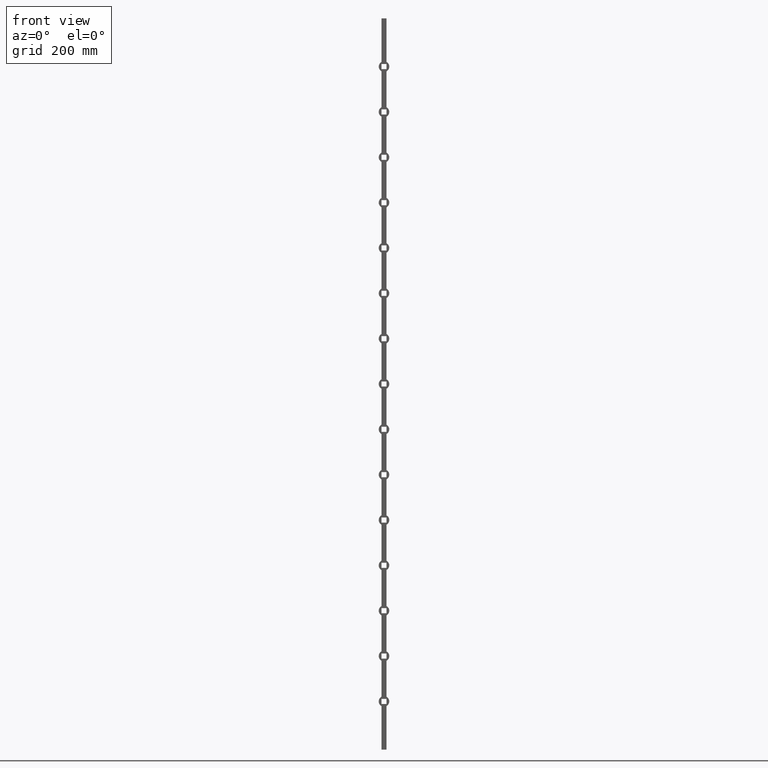
[diagram: clean part render]
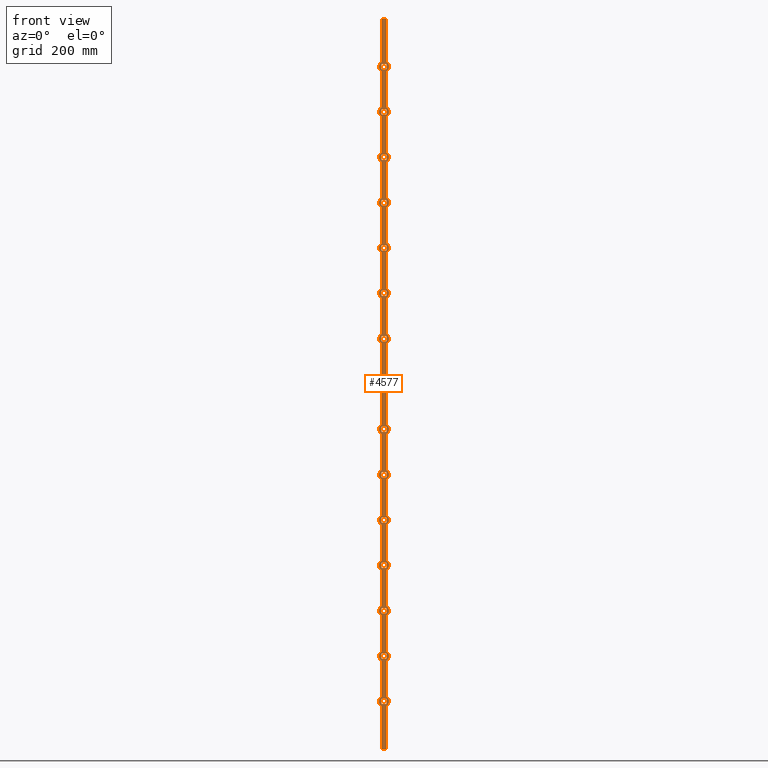
[diagram: same view with one face highlighted and labeled with its STEP entity id]
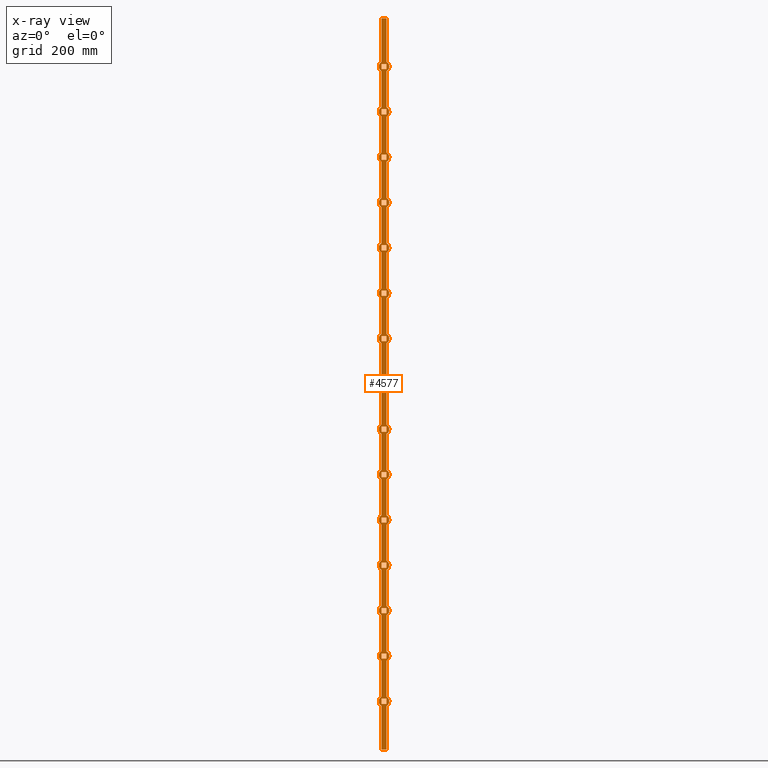
[diagram: x-ray of the same camera — body ghosted, the highlighted face saturated]
A machine part, front view. The second image highlights one B-rep face of the part: STEP entity #4577.
The next image is the same camera in x-ray: the body ghosted, the highlighted face saturated — about 0% of this face is hidden behind the body in this view.
In plain terms, the highlighted planar face has unit normal (0, 1, 0).
Its self-contained STEP definition (entity closure, byte-faithful):
#2 = ORIENTED_EDGE ( 'NONE', *, *, #13003, .T. ) ;
#6 = CARTESIAN_POINT ( 'NONE',  ( 7.000000000000005329, -7.000000000000000888, -255.0000000000001137 ) ) ;
#7 = VECTOR ( 'NONE', #14425, 1000.000000000000000 ) ;
#58 = ORIENTED_EDGE ( 'NONE', *, *, #4740, .T. ) ;
#85 = VERTEX_POINT ( 'NONE', #11510 ) ;
#104 = VERTEX_POINT ( 'NONE', #3488 ) ;
#107 = EDGE_CURVE ( 'NONE', #2911, #12431, #12876, .T. ) ;
#111 = LINE ( 'NONE', #10299, #4935 ) ;
#129 = EDGE_CURVE ( 'NONE', #8094, #363, #11469, .T. ) ;
#154 = DIRECTION ( 'NONE',  ( 1.000000000000000000, 0.000000000000000000, 0.000000000000000000 ) ) ;
#163 = CARTESIAN_POINT ( 'NONE',  ( 7.000000000000001776, -7.000000000000000000, 1000.000000000000000 ) ) ;
#173 = FACE_BOUND ( 'NONE', #11778, .T. ) ;
#186 = VECTOR ( 'NONE', #4996, 1000.000000000000000 ) ;
#187 = EDGE_LOOP ( 'NONE', ( #8700, #1679, #5447, #13505 ) ) ;
#190 = CARTESIAN_POINT ( 'NONE',  ( -7.000000000000005329, -7.000000000000000888, -613.0000000000000000 ) ) ;
#210 = VERTEX_POINT ( 'NONE', #8404 ) ;
#255 = AXIS2_PLACEMENT_3D ( 'NONE', #1571, #11595, #417 ) ;
#257 = CARTESIAN_POINT ( 'NONE',  ( -7.000000000000007105, -7.000000000000000888, 861.0000000000000000 ) ) ;
#277 = VECTOR ( 'NONE', #6298, 1000.000000000000000 ) ;
#284 = VERTEX_POINT ( 'NONE', #10565 ) ;
#290 = DIRECTION ( 'NONE',  ( 1.000000000000000000, 0.000000000000000000, 0.000000000000000000 ) ) ;
#294 = CARTESIAN_POINT ( 'NONE',  ( -6.999999999999998224, -7.000000000000000000, 136.6984250992003069 ) ) ;
#320 = LINE ( 'NONE', #357, #2826 ) ;
#324 = LINE ( 'NONE', #1363, #1237 ) ;
#335 = EDGE_CURVE ( 'NONE', #2011, #1256, #5264, .T. ) ;
#357 = CARTESIAN_POINT ( 'NONE',  ( -7.000000000000007105, -7.000000000000000888, 613.0000000000000000 ) ) ;
#363 = VERTEX_POINT ( 'NONE', #540 ) ;
#378 = VECTOR ( 'NONE', #8334, 1000.000000000000000 ) ;
#403 = LINE ( 'NONE', #1315, #8561 ) ;
#417 = DIRECTION ( 'NONE',  ( 0.000000000000000000, 0.000000000000000000, 1.000000000000000000 ) ) ;
#439 = EDGE_CURVE ( 'NONE', #8296, #13449, #12509, .T. ) ;
#458 = ORIENTED_EDGE ( 'NONE', *, *, #1755, .F. ) ;
#462 = EDGE_CURVE ( 'NONE', #12240, #6512, #9500, .T. ) ;
#473 = ORIENTED_EDGE ( 'NONE', *, *, #2362, .T. ) ;
#509 = EDGE_CURVE ( 'NONE', #13108, #3504, #4545, .T. ) ;
#536 = LINE ( 'NONE', #7591, #7800 ) ;
#540 = CARTESIAN_POINT ( 'NONE',  ( -7.000000000000007105, -7.000000000000000000, -875.0000000000000000 ) ) ;
#544 = LINE ( 'NONE', #9430, #7995 ) ;
#551 = CIRCLE ( 'NONE', #9554, 14.49999999999995737 ) ;
#555 = VECTOR ( 'NONE', #3030, 1000.000000000000000 ) ;
#561 = AXIS2_PLACEMENT_3D ( 'NONE', #10604, #8112, #2491 ) ;
#567 = ORIENTED_EDGE ( 'NONE', *, *, #8087, .F. ) ;
#589 = CARTESIAN_POINT ( 'NONE',  ( 7.000000000000021316, -7.000000000000000888, -260.6984250992003922 ) ) ;
#625 = VERTEX_POINT ( 'NONE', #10728 ) ;
#635 = EDGE_LOOP ( 'NONE', ( #10241, #7925, #7396, #9945 ) ) ;
#658 = CARTESIAN_POINT ( 'NONE',  ( -7.000000000000007105, -7.000000000000000888, 489.0000000000000000 ) ) ;
#679 = EDGE_LOOP ( 'NONE', ( #14469, #12852, #8071, #11506 ) ) ;
#682 = DIRECTION ( 'NONE',  ( -1.000000000000000000, -0.000000000000000000, -0.000000000000000000 ) ) ;
#708 = DIRECTION ( 'NONE',  ( -1.239088197126289831E-16, -0.000000000000000000, -1.000000000000000000 ) ) ;
#739 = CARTESIAN_POINT ( 'NONE',  ( 0.000000000000000000, -7.000000000000000888, -124.0000000000000000 ) ) ;
#743 = DIRECTION ( 'NONE',  ( -0.000000000000000000, -0.000000000000000000, -1.000000000000000000 ) ) ;
#755 = CARTESIAN_POINT ( 'NONE',  ( 0.000000000000000000, -7.000000000000000000, 124.0000000000000000 ) ) ;
#763 = VERTEX_POINT ( 'NONE', #1897 ) ;
#779 = CARTESIAN_POINT ( 'NONE',  ( 7.000000000000007105, -7.000000000000000888, -488.9999999999998863 ) ) ;
#780 = VERTEX_POINT ( 'NONE', #5631 ) ;
#791 = VECTOR ( 'NONE', #1369, 1000.000000000000000 ) ;
#820 = DIRECTION ( 'NONE',  ( 0.000000000000000000, 0.000000000000000000, 1.000000000000000000 ) ) ;
#825 = ORIENTED_EDGE ( 'NONE', *, *, #8459, .T. ) ;
#844 = ORIENTED_EDGE ( 'NONE', *, *, #12693, .F. ) ;
#853 = EDGE_LOOP ( 'NONE', ( #2286, #8909, #9162, #2 ) ) ;
#860 = EDGE_CURVE ( 'NONE', #11862, #14736, #5427, .T. ) ;
#861 = VERTEX_POINT ( 'NONE', #2886 ) ;
#863 = CARTESIAN_POINT ( 'NONE',  ( -7.000000000000007105, -7.000000000000000000, -379.0000000000000000 ) ) ;
#865 = CIRCLE ( 'NONE', #3681, 14.49999999999995737 ) ;
#866 = CARTESIAN_POINT ( 'NONE',  ( -6.999999999999998224, -7.000000000000000000, 855.3015749007997783 ) ) ;
#882 = CARTESIAN_POINT ( 'NONE',  ( -6.999999999999998224, -6.999999999999999112, -508.6984250992001648 ) ) ;
#884 = ORIENTED_EDGE ( 'NONE', *, *, #10209, .F. ) ;
#908 = ORIENTED_EDGE ( 'NONE', *, *, #11644, .T. ) ;
#918 = CARTESIAN_POINT ( 'NONE',  ( -7.000000000000007105, -7.000000000000000000, 613.0000000000000000 ) ) ;
#935 = CIRCLE ( 'NONE', #10492, 14.50000000000001243 ) ;
#939 = VECTOR ( 'NONE', #9495, 1000.000000000000000 ) ;
#943 = VERTEX_POINT ( 'NONE', #12037 ) ;
#951 = AXIS2_PLACEMENT_3D ( 'NONE', #10992, #14411, #12076 ) ;
#991 = CARTESIAN_POINT ( 'NONE',  ( 7.000000000000001776, -7.000000000000000000, 1000.000000000000000 ) ) ;
#1000 = ORIENTED_EDGE ( 'NONE', *, *, #8593, .T. ) ;
#1003 = ORIENTED_EDGE ( 'NONE', *, *, #1537, .T. ) ;
#1022 = LINE ( 'NONE', #14334, #12728 ) ;
#1027 = CARTESIAN_POINT ( 'NONE',  ( 7.000000000000007105, -7.000000000000000888, 503.0000000000000000 ) ) ;
#1030 = ORIENTED_EDGE ( 'NONE', *, *, #5075, .F. ) ;
#1040 = ORIENTED_EDGE ( 'NONE', *, *, #6907, .T. ) ;
#1050 = ORIENTED_EDGE ( 'NONE', *, *, #6622, .T. ) ;
#1079 = AXIS2_PLACEMENT_3D ( 'NONE', #6405, #4084, #5235 ) ;
#1097 = LINE ( 'NONE', #11496, #11383 ) ;
#1133 = CARTESIAN_POINT ( 'NONE',  ( -7.000000000000005329, -7.000000000000000888, -117.0000000000000000 ) ) ;
#1151 = DIRECTION ( 'NONE',  ( -1.239088197126289831E-16, -0.000000000000000000, -1.000000000000000000 ) ) ;
#1156 = VERTEX_POINT ( 'NONE', #11177 ) ;
#1163 = DIRECTION ( 'NONE',  ( -1.000000000000000000, -0.000000000000000000, -0.000000000000000000 ) ) ;
#1182 = VERTEX_POINT ( 'NONE', #8992 ) ;
#1193 = DIRECTION ( 'NONE',  ( 1.000000000000000000, 0.000000000000000000, 0.000000000000000000 ) ) ;
#1207 = CARTESIAN_POINT ( 'NONE',  ( 7.000000000000001776, -6.999999999999999112, -855.3015749007997783 ) ) ;
#1217 = VECTOR ( 'NONE', #11613, 1000.000000000000000 ) ;
#1237 = VECTOR ( 'NONE', #4888, 1000.000000000000000 ) ;
#1247 = VERTEX_POINT ( 'NONE', #5883 ) ;
#1256 = VERTEX_POINT ( 'NONE', #9038 ) ;
#1261 = FACE_BOUND ( 'NONE', #5557, .T. ) ;
#1264 = AXIS2_PLACEMENT_3D ( 'NONE', #13697, #9391, #5880 ) ;
#1270 = VERTEX_POINT ( 'NONE', #9091 ) ;
#1271 = DIRECTION ( 'NONE',  ( 0.000000000000000000, 1.000000000000000000, 0.000000000000000000 ) ) ;
#1285 = AXIS2_PLACEMENT_3D ( 'NONE', #11585, #11633, #9396 ) ;
#1297 = VECTOR ( 'NONE', #12128, 1000.000000000000000 ) ;
#1300 = VERTEX_POINT ( 'NONE', #3656 ) ;
#1308 = EDGE_CURVE ( 'NONE', #12424, #13587, #9663, .T. ) ;
#1315 = CARTESIAN_POINT ( 'NONE',  ( -6.999999999999998224, -7.000000000000000000, 1000.000000000000000 ) ) ;
#1358 = VERTEX_POINT ( 'NONE', #12664 ) ;
#1363 = CARTESIAN_POINT ( 'NONE',  ( -7.000000000000005329, -7.000000000000000888, -365.0000000000000000 ) ) ;
#1369 = DIRECTION ( 'NONE',  ( -0.000000000000000000, -0.000000000000000000, -1.000000000000000000 ) ) ;
#1377 = CARTESIAN_POINT ( 'NONE',  ( 7.000000000000001776, -7.000000000000000000, 384.6984250992002785 ) ) ;
#1380 = VERTEX_POINT ( 'NONE', #2553 ) ;
#1388 = CARTESIAN_POINT ( 'NONE',  ( -7.000000000000007105, -7.000000000000000888, -379.0000000000000000 ) ) ;
#1389 = LINE ( 'NONE', #4527, #9358 ) ;
#1419 = EDGE_CURVE ( 'NONE', #2476, #13890, #6652, .T. ) ;
#1436 = VECTOR ( 'NONE', #5256, 1000.000000000000000 ) ;
#1442 = DIRECTION ( 'NONE',  ( 0.000000000000000000, 1.000000000000000000, 0.000000000000000000 ) ) ;
#1468 = VERTEX_POINT ( 'NONE', #10519 ) ;
#1490 = CARTESIAN_POINT ( 'NONE',  ( 7.000000000000001776, -6.999999999999999112, -235.3015749007998068 ) ) ;
#1492 = CARTESIAN_POINT ( 'NONE',  ( -7.000000000000007105, -7.000000000000000888, 365.0000000000000000 ) ) ;
#1500 = VECTOR ( 'NONE', #10819, 1000.000000000000000 ) ;
#1504 = VECTOR ( 'NONE', #8558, 1000.000000000000000 ) ;
#1537 = EDGE_CURVE ( 'NONE', #1247, #10142, #6292, .T. ) ;
#1553 = CARTESIAN_POINT ( 'NONE',  ( 7.000000000000005329, -7.000000000000000888, -627.0000000000000000 ) ) ;
#1560 = EDGE_CURVE ( 'NONE', #5953, #1468, #7539, .T. ) ;
#1570 = LINE ( 'NONE', #13827, #1217 ) ;
#1571 = CARTESIAN_POINT ( 'NONE',  ( 0.000000000000000000, -7.000000000000000000, 0.000000000000000000 ) ) ;
#1577 = ORIENTED_EDGE ( 'NONE', *, *, #14636, .T. ) ;
#1588 = VECTOR ( 'NONE', #10341, 1000.000000000000000 ) ;
#1610 = FACE_BOUND ( 'NONE', #635, .T. ) ;
#1623 = VECTOR ( 'NONE', #682, 1000.000000000000000 ) ;
#1667 = LINE ( 'NONE', #6612, #5571 ) ;
#1679 = ORIENTED_EDGE ( 'NONE', *, *, #6482, .T. ) ;
#1754 = EDGE_CURVE ( 'NONE', #1853, #10871, #3102, .T. ) ;
#1755 = EDGE_CURVE ( 'NONE', #6207, #2011, #4159, .T. ) ;
#1767 = CARTESIAN_POINT ( 'NONE',  ( -7.000000000000007105, -7.000000000000000888, 737.0000000000000000 ) ) ;
#1784 = ORIENTED_EDGE ( 'NONE', *, *, #10431, .F. ) ;
#1785 = CARTESIAN_POINT ( 'NONE',  ( 7.000000000000005329, -7.000000000000000888, 737.0000000000000000 ) ) ;
#1796 = EDGE_CURVE ( 'NONE', #284, #6888, #10899, .T. ) ;
#1799 = CARTESIAN_POINT ( 'NONE',  ( 7.000000000000007105, -7.000000000000000888, 379.0000000000000000 ) ) ;
#1815 = VERTEX_POINT ( 'NONE', #10776 ) ;
#1818 = EDGE_CURVE ( 'NONE', #3948, #763, #8750, .T. ) ;
#1837 = ORIENTED_EDGE ( 'NONE', *, *, #2787, .F. ) ;
#1853 = VERTEX_POINT ( 'NONE', #13236 ) ;
#1871 = CARTESIAN_POINT ( 'NONE',  ( 7.000000000000001776, -7.000000000000000000, 632.6984250992002217 ) ) ;
#1897 = CARTESIAN_POINT ( 'NONE',  ( 7.000000000000005329, -7.000000000000000888, -751.0000000000001137 ) ) ;
#1911 = EDGE_CURVE ( 'NONE', #1853, #3529, #11064, .T. ) ;
#1927 = ORIENTED_EDGE ( 'NONE', *, *, #12516, .F. ) ;
#1932 = CARTESIAN_POINT ( 'NONE',  ( 7.000000000000007105, -7.000000000000000888, 131.0000000000000000 ) ) ;
#1937 = DIRECTION ( 'NONE',  ( -0.000000000000000000, -0.000000000000000000, -1.000000000000000000 ) ) ;
#1941 = ORIENTED_EDGE ( 'NONE', *, *, #4187, .F. ) ;
#1960 = CIRCLE ( 'NONE', #12499, 14.49999999999995737 ) ;
#1972 = FACE_BOUND ( 'NONE', #187, .T. ) ;
#1999 = CARTESIAN_POINT ( 'NONE',  ( 7.000000000000007105, -7.000000000000000888, 255.0000000000000000 ) ) ;
#2010 = CARTESIAN_POINT ( 'NONE',  ( 7.000000000000000000, -7.000000000000000000, 235.3015749007996931 ) ) ;
#2011 = VERTEX_POINT ( 'NONE', #2010 ) ;
#2014 = ORIENTED_EDGE ( 'NONE', *, *, #1796, .T. ) ;
#2021 = LINE ( 'NONE', #8204, #939 ) ;
#2043 = ORIENTED_EDGE ( 'NONE', *, *, #7526, .F. ) ;
#2071 = CARTESIAN_POINT ( 'NONE',  ( -7.000000000000018652, -7.000000000000000000, 756.6984250992002217 ) ) ;
#2093 = EDGE_LOOP ( 'NONE', ( #473, #13885, #6191, #8876 ) ) ;
#2109 = CARTESIAN_POINT ( 'NONE',  ( 7.000000000000001776, -7.000000000000000000, 1000.000000000000000 ) ) ;
#2111 = CARTESIAN_POINT ( 'NONE',  ( 0.000000000000000000, -7.000000000000000000, 620.0000000000000000 ) ) ;
#2121 = DIRECTION ( 'NONE',  ( 1.239088197126289831E-16, 0.000000000000000000, 1.000000000000000000 ) ) ;
#2135 = EDGE_CURVE ( 'NONE', #10285, #6303, #7511, .T. ) ;
#2161 = CARTESIAN_POINT ( 'NONE',  ( -6.999999999999998224, -6.999999999999999112, -880.6984250992002217 ) ) ;
#2164 = CARTESIAN_POINT ( 'NONE',  ( -6.999999999999998224, -7.000000000000000000, -12.69842509920029983 ) ) ;
#2175 = DIRECTION ( 'NONE',  ( 0.000000000000000000, 1.000000000000000000, 0.000000000000000000 ) ) ;
#2198 = LINE ( 'NONE', #10482, #8363 ) ;
#2204 = EDGE_CURVE ( 'NONE', #1380, #6977, #403, .T. ) ;
#2229 = LINE ( 'NONE', #9569, #1504 ) ;
#2261 = ORIENTED_EDGE ( 'NONE', *, *, #11223, .F. ) ;
#2281 = VERTEX_POINT ( 'NONE', #3739 ) ;
#2286 = ORIENTED_EDGE ( 'NONE', *, *, #13251, .T. ) ;
#2289 = CARTESIAN_POINT ( 'NONE',  ( 7.000000000000007105, -7.000000000000000888, -241.0000000000001137 ) ) ;
#2311 = ORIENTED_EDGE ( 'NONE', *, *, #8936, .T. ) ;
#2352 = VECTOR ( 'NONE', #5126, 1000.000000000000000 ) ;
#2362 = EDGE_CURVE ( 'NONE', #11436, #3948, #1667, .T. ) ;
#2366 = CARTESIAN_POINT ( 'NONE',  ( -7.000000000000005329, -7.000000000000000888, 255.0000000000000000 ) ) ;
#2373 = CARTESIAN_POINT ( 'NONE',  ( 0.000000000000000000, -7.000000000000000888, -744.0000000000001137 ) ) ;
#2388 = CARTESIAN_POINT ( 'NONE',  ( 7.000000000000001776, -7.000000000000000000, 1000.000000000000000 ) ) ;
#2417 = DIRECTION ( 'NONE',  ( -0.000000000000000000, -0.000000000000000000, -1.000000000000000000 ) ) ;
#2418 = DIRECTION ( 'NONE',  ( -1.239088197126289831E-16, -0.000000000000000000, -1.000000000000000000 ) ) ;
#2465 = VERTEX_POINT ( 'NONE', #6601 ) ;
#2468 = VECTOR ( 'NONE', #3753, 1000.000000000000000 ) ;
#2474 = CARTESIAN_POINT ( 'NONE',  ( -7.000000000000005329, -7.000000000000000888, -613.0000000000000000 ) ) ;
#2475 = LINE ( 'NONE', #8518, #10975 ) ;
#2476 = VERTEX_POINT ( 'NONE', #5461 ) ;
#2491 = DIRECTION ( 'NONE',  ( 0.000000000000000000, 0.000000000000000000, 1.000000000000000000 ) ) ;
#2532 = ORIENTED_EDGE ( 'NONE', *, *, #6736, .T. ) ;
#2533 = EDGE_CURVE ( 'NONE', #6304, #14571, #4502, .T. ) ;
#2553 = CARTESIAN_POINT ( 'NONE',  ( -6.999999999999998224, -7.000000000000000000, 1000.000000000000000 ) ) ;
#2561 = VECTOR ( 'NONE', #7909, 1000.000000000000000 ) ;
#2562 = EDGE_CURVE ( 'NONE', #3993, #11837, #13177, .T. ) ;
#2578 = DIRECTION ( 'NONE',  ( 0.000000000000000000, 0.000000000000000000, 1.000000000000000000 ) ) ;
#2608 = VERTEX_POINT ( 'NONE', #2071 ) ;
#2616 = ORIENTED_EDGE ( 'NONE', *, *, #14433, .T. ) ;
#2631 = EDGE_LOOP ( 'NONE', ( #13134, #14438, #6469, #1577, #3645, #2817, #4878, #13904, #6738, #8740, #9798, #3492, #11437, #1030, #1837, #1941, #6493, #10861, #1784, #11335, #13992, #10236, #11032, #458, #11628, #844, #14123, #3011, #2261, #6012, #13113, #9476, #9769, #14297, #4055, #2642, #14374, #7622, #5840, #1927, #13866, #13025, #5163, #11606, #10688, #3888, #10090, #10846, #3321, #2043, #7996, #5226, #8097, #884, #7099, #4756, #14504, #567, #3448, #8962, #11058, #3667, #11883, #6990 ) ) ;
#2636 = EDGE_CURVE ( 'NONE', #9150, #11568, #935, .T. ) ;
#2642 = ORIENTED_EDGE ( 'NONE', *, *, #2204, .F. ) ;
#2648 = ORIENTED_EDGE ( 'NONE', *, *, #1419, .T. ) ;
#2652 = VECTOR ( 'NONE', #14100, 1000.000000000000000 ) ;
#2658 = LINE ( 'NONE', #13674, #8461 ) ;
#2665 = EDGE_CURVE ( 'NONE', #5481, #5510, #7847, .T. ) ;
#2687 = DIRECTION ( 'NONE',  ( 0.000000000000000000, 0.000000000000000000, 1.000000000000000000 ) ) ;
#2708 = CARTESIAN_POINT ( 'NONE',  ( 7.000000000000001776, -7.000000000000000000, -1000.000000000000000 ) ) ;
#2735 = CIRCLE ( 'NONE', #1079, 14.50000000000000355 ) ;
#2747 = DIRECTION ( 'NONE',  ( 0.000000000000000000, 0.000000000000000000, 1.000000000000000000 ) ) ;
#2753 = CARTESIAN_POINT ( 'NONE',  ( 0.000000000000000000, -7.000000000000000000, 744.0000000000000000 ) ) ;
#2763 = CARTESIAN_POINT ( 'NONE',  ( 7.000000000000021316, -7.000000000000000888, -756.6984250992003354 ) ) ;
#2787 = EDGE_CURVE ( 'NONE', #7955, #104, #8201, .T. ) ;
#2790 = DIRECTION ( 'NONE',  ( 1.000000000000000000, 0.000000000000000000, 0.000000000000000000 ) ) ;
#2817 = ORIENTED_EDGE ( 'NONE', *, *, #10451, .F. ) ;
#2826 = VECTOR ( 'NONE', #8285, 1000.000000000000000 ) ;
#2843 = ORIENTED_EDGE ( 'NONE', *, *, #13864, .T. ) ;
#2886 = CARTESIAN_POINT ( 'NONE',  ( 7.000000000000001776, -7.000000000000000000, 12.69842509920029805 ) ) ;
#2908 = LINE ( 'NONE', #12566, #2561 ) ;
#2911 = VERTEX_POINT ( 'NONE', #2763 ) ;
#2934 = VECTOR ( 'NONE', #5964, 1000.000000000000000 ) ;
#2946 = VERTEX_POINT ( 'NONE', #5047 ) ;
#2960 = CARTESIAN_POINT ( 'NONE',  ( 7.000000000000001776, -7.000000000000000000, 1000.000000000000000 ) ) ;
#2976 = CARTESIAN_POINT ( 'NONE',  ( -7.000000000000007105, -7.000000000000000888, 241.0000000000000000 ) ) ;
#3011 = ORIENTED_EDGE ( 'NONE', *, *, #4040, .F. ) ;
#3027 = EDGE_CURVE ( 'NONE', #861, #4812, #2735, .T. ) ;
#3029 = CARTESIAN_POINT ( 'NONE',  ( 0.000000000000000000, -7.000000000000000000, 496.0000000000000000 ) ) ;
#3030 = DIRECTION ( 'NONE',  ( -0.000000000000000000, -0.000000000000000000, -1.000000000000000000 ) ) ;
#3045 = CIRCLE ( 'NONE', #1285, 14.50000000000001243 ) ;
#3050 = DIRECTION ( 'NONE',  ( -0.000000000000000000, -0.000000000000000000, -1.000000000000000000 ) ) ;
#3092 = CARTESIAN_POINT ( 'NONE',  ( 7.000000000000021316, -7.000000000000000000, 855.3015749007997783 ) ) ;
#3102 = CIRCLE ( 'NONE', #11332, 14.49999999999995737 ) ;
#3110 = DIRECTION ( 'NONE',  ( 0.000000000000000000, 0.000000000000000000, 1.000000000000000000 ) ) ;
#3130 = DIRECTION ( 'NONE',  ( 0.000000000000000000, 1.000000000000000000, 0.000000000000000000 ) ) ;
#3135 = AXIS2_PLACEMENT_3D ( 'NONE', #6565, #7697, #3110 ) ;
#3159 = CARTESIAN_POINT ( 'NONE',  ( 7.000000000000001776, -7.000000000000000000, 1000.000000000000000 ) ) ;
#3161 = DIRECTION ( 'NONE',  ( 0.000000000000000000, 0.000000000000000000, 1.000000000000000000 ) ) ;
#3168 = CARTESIAN_POINT ( 'NONE',  ( -6.999999999999998224, -7.000000000000000000, 1000.000000000000000 ) ) ;
#3213 = LINE ( 'NONE', #658, #7109 ) ;
#3215 = CARTESIAN_POINT ( 'NONE',  ( 0.000000000000000000, -7.000000000000000000, 372.0000000000000000 ) ) ;
#3250 = VECTOR ( 'NONE', #14510, 1000.000000000000000 ) ;
#3283 = ORIENTED_EDGE ( 'NONE', *, *, #5629, .T. ) ;
#3294 = CARTESIAN_POINT ( 'NONE',  ( -7.000000000000007105, -7.000000000000000888, -751.0000000000001137 ) ) ;
#3317 = CARTESIAN_POINT ( 'NONE',  ( -7.000000000000005329, -7.000000000000000888, 751.0000000000000000 ) ) ;
#3321 = ORIENTED_EDGE ( 'NONE', *, *, #12338, .T. ) ;
#3339 = CARTESIAN_POINT ( 'NONE',  ( 7.000000000000021316, -7.000000000000000000, 607.3015749007997783 ) ) ;
#3347 = CIRCLE ( 'NONE', #5590, 14.50000000000001243 ) ;
#3368 = VERTEX_POINT ( 'NONE', #14086 ) ;
#3371 = VERTEX_POINT ( 'NONE', #3787 ) ;
#3392 = CARTESIAN_POINT ( 'NONE',  ( 7.000000000000021316, -7.000000000000000000, 359.3015749007997215 ) ) ;
#3421 = LINE ( 'NONE', #14149, #378 ) ;
#3429 = LINE ( 'NONE', #11459, #12988 ) ;
#3437 = EDGE_CURVE ( 'NONE', #6888, #14522, #3429, .T. ) ;
#3448 = ORIENTED_EDGE ( 'NONE', *, *, #11307, .T. ) ;
#3482 = CARTESIAN_POINT ( 'NONE',  ( -7.000000000000018652, -7.000000000000000888, -607.3015749007997783 ) ) ;
#3488 = CARTESIAN_POINT ( 'NONE',  ( 7.000000000000001776, -6.999999999999999112, -359.3015749007997215 ) ) ;
#3492 = ORIENTED_EDGE ( 'NONE', *, *, #509, .F. ) ;
#3501 = EDGE_CURVE ( 'NONE', #8980, #5481, #5541, .T. ) ;
#3504 = VERTEX_POINT ( 'NONE', #6352 ) ;
#3514 = LINE ( 'NONE', #1492, #9887 ) ;
#3529 = VERTEX_POINT ( 'NONE', #9762 ) ;
#3575 = LINE ( 'NONE', #4313, #5709 ) ;
#3605 = DIRECTION ( 'NONE',  ( -0.000000000000000000, -0.000000000000000000, -1.000000000000000000 ) ) ;
#3645 = ORIENTED_EDGE ( 'NONE', *, *, #13974, .F. ) ;
#3656 = CARTESIAN_POINT ( 'NONE',  ( -7.000000000000007105, -7.000000000000000000, 365.0000000000000000 ) ) ;
#3667 = ORIENTED_EDGE ( 'NONE', *, *, #1754, .F. ) ;
#3681 = AXIS2_PLACEMENT_3D ( 'NONE', #5895, #8152, #11593 ) ;
#3718 = EDGE_CURVE ( 'NONE', #8707, #4063, #9785, .T. ) ;
#3739 = CARTESIAN_POINT ( 'NONE',  ( -6.999999999999998224, -6.999999999999999112, -136.6984250992003069 ) ) ;
#3749 = EDGE_LOOP ( 'NONE', ( #1003, #1000, #10646, #6899 ) ) ;
#3753 = DIRECTION ( 'NONE',  ( -1.239088197126289831E-16, -0.000000000000000000, -1.000000000000000000 ) ) ;
#3786 = LINE ( 'NONE', #257, #7500 ) ;
#3787 = CARTESIAN_POINT ( 'NONE',  ( -7.000000000000018652, -7.000000000000000000, 880.6984250992002217 ) ) ;
#3814 = VECTOR ( 'NONE', #154, 1000.000000000000000 ) ;
#3858 = CARTESIAN_POINT ( 'NONE',  ( 0.000000000000000000, -7.000000000000000888, -372.0000000000000000 ) ) ;
#3888 = ORIENTED_EDGE ( 'NONE', *, *, #4250, .F. ) ;
#3911 = EDGE_CURVE ( 'NONE', #7179, #7449, #1097, .T. ) ;
#3916 = CARTESIAN_POINT ( 'NONE',  ( -7.000000000000005329, -7.000000000000000888, -241.0000000000001137 ) ) ;
#3918 = VERTEX_POINT ( 'NONE', #10601 ) ;
#3936 = ORIENTED_EDGE ( 'NONE', *, *, #4518, .T. ) ;
#3948 = VERTEX_POINT ( 'NONE', #13022 ) ;
#3959 = ORIENTED_EDGE ( 'NONE', *, *, #11356, .T. ) ;
#3961 = DIRECTION ( 'NONE',  ( 1.000000000000000000, 0.000000000000000000, 0.000000000000000000 ) ) ;
#3993 = VERTEX_POINT ( 'NONE', #14012 ) ;
#4034 = VECTOR ( 'NONE', #10408, 1000.000000000000000 ) ;
#4039 = CARTESIAN_POINT ( 'NONE',  ( -6.999999999999998224, -7.000000000000000000, 1000.000000000000000 ) ) ;
#4040 = EDGE_CURVE ( 'NONE', #13357, #3993, #551, .T. ) ;
#4055 = ORIENTED_EDGE ( 'NONE', *, *, #6122, .F. ) ;
#4057 = VERTEX_POINT ( 'NONE', #8745 ) ;
#4063 = VERTEX_POINT ( 'NONE', #10988 ) ;
#4084 = DIRECTION ( 'NONE',  ( 0.000000000000000000, 1.000000000000000000, 0.000000000000000000 ) ) ;
#4114 = CARTESIAN_POINT ( 'NONE',  ( 7.000000000000001776, -7.000000000000000000, 1000.000000000000000 ) ) ;
#4122 = CARTESIAN_POINT ( 'NONE',  ( -6.999999999999998224, -7.000000000000000000, 1000.000000000000000 ) ) ;
#4159 = CIRCLE ( 'NONE', #1264, 14.50000000000001243 ) ;
#4169 = AXIS2_PLACEMENT_3D ( 'NONE', #4636, #11572, #4736 ) ;
#4187 = EDGE_CURVE ( 'NONE', #14736, #7955, #12071, .T. ) ;
#4202 = CARTESIAN_POINT ( 'NONE',  ( -6.999999999999998224, -7.000000000000000000, 1000.000000000000000 ) ) ;
#4243 = VERTEX_POINT ( 'NONE', #6574 ) ;
#4248 = LINE ( 'NONE', #6568, #13102 ) ;
#4250 = EDGE_CURVE ( 'NONE', #1358, #6220, #11194, .T. ) ;
#4258 = CARTESIAN_POINT ( 'NONE',  ( -7.000000000000005329, -7.000000000000000888, 131.0000000000000000 ) ) ;
#4266 = LINE ( 'NONE', #2960, #12598 ) ;
#4286 = DIRECTION ( 'NONE',  ( -1.000000000000000000, -0.000000000000000000, -0.000000000000000000 ) ) ;
#4313 = CARTESIAN_POINT ( 'NONE',  ( -6.999999999999998224, -7.000000000000000000, 1000.000000000000000 ) ) ;
#4382 = EDGE_CURVE ( 'NONE', #1256, #8916, #3045, .T. ) ;
#4385 = CARTESIAN_POINT ( 'NONE',  ( 7.000000000000001776, -7.000000000000000000, 1000.000000000000000 ) ) ;
#4404 = VERTEX_POINT ( 'NONE', #12710 ) ;
#4412 = VECTOR ( 'NONE', #4286, 1000.000000000000000 ) ;
#4417 = DIRECTION ( 'NONE',  ( -0.000000000000000000, -0.000000000000000000, -1.000000000000000000 ) ) ;
#4428 = EDGE_CURVE ( 'NONE', #1380, #3371, #14569, .T. ) ;
#4445 = CARTESIAN_POINT ( 'NONE',  ( 7.000000000000001776, -7.000000000000000000, 508.6984250992002785 ) ) ;
#4446 = DIRECTION ( 'NONE',  ( -1.239088197126289831E-16, -0.000000000000000000, -1.000000000000000000 ) ) ;
#4487 = CARTESIAN_POINT ( 'NONE',  ( 7.000000000000001776, -7.000000000000000000, 1000.000000000000000 ) ) ;
#4492 = LINE ( 'NONE', #9082, #10525 ) ;
#4502 = LINE ( 'NONE', #5564, #12827 ) ;
#4518 = EDGE_CURVE ( 'NONE', #14522, #9353, #3213, .T. ) ;
#4527 = CARTESIAN_POINT ( 'NONE',  ( 7.000000000000005329, -7.000000000000000888, 241.0000000000000000 ) ) ;
#4535 = CARTESIAN_POINT ( 'NONE',  ( -7.000000000000007105, -7.000000000000000000, -255.0000000000001137 ) ) ;
#4545 = CIRCLE ( 'NONE', #11423, 14.50000000000001243 ) ;
#4561 = EDGE_CURVE ( 'NONE', #4243, #13108, #4266, .T. ) ;
#4563 = AXIS2_PLACEMENT_3D ( 'NONE', #9450, #10449, #2578 ) ;
#4570 = LINE ( 'NONE', #2388, #13777 ) ;
#4577 = ADVANCED_FACE ( 'NONE', ( #7630, #14023, #13121, #9753, #1972, #13836, #10657, #1261, #173, #9589, #1610, #7456, #5348, #7990, #4999, #9230 ), #5143, .F. ) ;
#4598 = DIRECTION ( 'NONE',  ( -1.239088197126289831E-16, -0.000000000000000000, -1.000000000000000000 ) ) ;
#4621 = DIRECTION ( 'NONE',  ( -0.000000000000000000, -0.000000000000000000, -1.000000000000000000 ) ) ;
#4629 = CARTESIAN_POINT ( 'NONE',  ( -6.999999999999998224, -6.999999999999999112, -756.6984250992003354 ) ) ;
#4630 = DIRECTION ( 'NONE',  ( 1.000000000000000000, 0.000000000000000000, 0.000000000000000000 ) ) ;
#4636 = CARTESIAN_POINT ( 'NONE',  ( 0.000000000000000000, -7.000000000000000888, -868.0000000000000000 ) ) ;
#4649 = EDGE_CURVE ( 'NONE', #13970, #9647, #9942, .T. ) ;
#4670 = EDGE_CURVE ( 'NONE', #11571, #1270, #536, .T. ) ;
#4730 = VERTEX_POINT ( 'NONE', #6812 ) ;
#4736 = DIRECTION ( 'NONE',  ( 0.000000000000000000, 0.000000000000000000, 1.000000000000000000 ) ) ;
#4740 = EDGE_CURVE ( 'NONE', #9919, #13344, #10312, .T. ) ;
#4756 = ORIENTED_EDGE ( 'NONE', *, *, #7362, .F. ) ;
#4758 = VERTEX_POINT ( 'NONE', #12346 ) ;
#4771 = DIRECTION ( 'NONE',  ( -0.000000000000000000, -0.000000000000000000, -1.000000000000000000 ) ) ;
#4776 = CARTESIAN_POINT ( 'NONE',  ( -7.000000000000005329, -7.000000000000000888, 875.0000000000000000 ) ) ;
#4785 = AXIS2_PLACEMENT_3D ( 'NONE', #2111, #10029, #12349 ) ;
#4805 = DIRECTION ( 'NONE',  ( 1.239088197126289831E-16, 0.000000000000000000, 1.000000000000000000 ) ) ;
#4812 = VERTEX_POINT ( 'NONE', #6956 ) ;
#4827 = LINE ( 'NONE', #13118, #1623 ) ;
#4829 = CARTESIAN_POINT ( 'NONE',  ( 7.000000000000000000, -7.000000000000000000, 111.3015749007996931 ) ) ;
#4847 = LINE ( 'NONE', #5985, #9795 ) ;
#4878 = ORIENTED_EDGE ( 'NONE', *, *, #107, .F. ) ;
#4888 = DIRECTION ( 'NONE',  ( 1.000000000000000000, 0.000000000000000000, 0.000000000000000000 ) ) ;
#4894 = CARTESIAN_POINT ( 'NONE',  ( -7.000000000000018652, -7.000000000000000000, 384.6984250992002785 ) ) ;
#4906 = CARTESIAN_POINT ( 'NONE',  ( -7.000000000000007105, -7.000000000000000888, -131.0000000000000000 ) ) ;
#4914 = VERTEX_POINT ( 'NONE', #14081 ) ;
#4919 = ORIENTED_EDGE ( 'NONE', *, *, #1560, .T. ) ;
#4935 = VECTOR ( 'NONE', #10148, 1000.000000000000000 ) ;
#4969 = CARTESIAN_POINT ( 'NONE',  ( -6.999999999999998224, -7.000000000000000000, 1000.000000000000000 ) ) ;
#4996 = DIRECTION ( 'NONE',  ( -0.000000000000000000, -0.000000000000000000, -1.000000000000000000 ) ) ;
#4999 = FACE_BOUND ( 'NONE', #11425, .T. ) ;
#5041 = VERTEX_POINT ( 'NONE', #3339 ) ;
#5044 = VECTOR ( 'NONE', #9239, 1000.000000000000000 ) ;
#5047 = CARTESIAN_POINT ( 'NONE',  ( 7.000000000000001776, -6.999999999999999112, -111.3015749007996931 ) ) ;
#5075 = EDGE_CURVE ( 'NONE', #104, #4243, #14010, .T. ) ;
#5090 = CARTESIAN_POINT ( 'NONE',  ( 0.000000000000000000, -7.000000000000000888, -248.0000000000001137 ) ) ;
#5101 = CARTESIAN_POINT ( 'NONE',  ( -7.000000000000018652, -7.000000000000000000, 260.6984250992002785 ) ) ;
#5126 = DIRECTION ( 'NONE',  ( -1.239088197126289831E-16, -0.000000000000000000, -1.000000000000000000 ) ) ;
#5128 = VECTOR ( 'NONE', #6841, 1000.000000000000000 ) ;
#5131 = VERTEX_POINT ( 'NONE', #3392 ) ;
#5143 = PLANE ( 'NONE',  #5769 ) ;
#5163 = ORIENTED_EDGE ( 'NONE', *, *, #7937, .T. ) ;
#5177 = EDGE_CURVE ( 'NONE', #8273, #3371, #1960, .T. ) ;
#5184 = CIRCLE ( 'NONE', #951, 14.49999999999995737 ) ;
#5226 = ORIENTED_EDGE ( 'NONE', *, *, #7141, .F. ) ;
#5235 = DIRECTION ( 'NONE',  ( 0.000000000000000000, 0.000000000000000000, 1.000000000000000000 ) ) ;
#5241 = VECTOR ( 'NONE', #1937, 1000.000000000000000 ) ;
#5247 = ORIENTED_EDGE ( 'NONE', *, *, #12535, .T. ) ;
#5256 = DIRECTION ( 'NONE',  ( 1.239088197126289831E-16, 0.000000000000000000, 1.000000000000000000 ) ) ;
#5264 = LINE ( 'NONE', #5268, #277 ) ;
#5265 = EDGE_CURVE ( 'NONE', #2281, #4730, #5856, .T. ) ;
#5268 = CARTESIAN_POINT ( 'NONE',  ( 7.000000000000001776, -7.000000000000000000, 1000.000000000000000 ) ) ;
#5342 = LINE ( 'NONE', #1767, #1436 ) ;
#5348 = FACE_BOUND ( 'NONE', #2093, .T. ) ;
#5367 = DIRECTION ( 'NONE',  ( 0.000000000000000000, 0.000000000000000000, 1.000000000000000000 ) ) ;
#5395 = DIRECTION ( 'NONE',  ( -0.000000000000000000, -0.000000000000000000, -1.000000000000000000 ) ) ;
#5398 = DIRECTION ( 'NONE',  ( -1.000000000000000000, -0.000000000000000000, -0.000000000000000000 ) ) ;
#5419 = DIRECTION ( 'NONE',  ( 0.000000000000000000, 1.000000000000000000, 0.000000000000000000 ) ) ;
#5425 = ORIENTED_EDGE ( 'NONE', *, *, #11872, .T. ) ;
#5427 = LINE ( 'NONE', #6199, #8774 ) ;
#5444 = DIRECTION ( 'NONE',  ( 0.000000000000000000, 0.000000000000000000, 1.000000000000000000 ) ) ;
#5447 = ORIENTED_EDGE ( 'NONE', *, *, #4649, .T. ) ;
#5458 = VECTOR ( 'NONE', #13631, 1000.000000000000000 ) ;
#5461 = CARTESIAN_POINT ( 'NONE',  ( -7.000000000000005329, -7.000000000000000888, 875.0000000000000000 ) ) ;
#5477 = DIRECTION ( 'NONE',  ( -0.000000000000000000, -0.000000000000000000, -1.000000000000000000 ) ) ;
#5481 = VERTEX_POINT ( 'NONE', #11291 ) ;
#5493 = VERTEX_POINT ( 'NONE', #7712 ) ;
#5499 = CARTESIAN_POINT ( 'NONE',  ( -7.000000000000007105, -7.000000000000000000, 737.0000000000000000 ) ) ;
#5510 = VERTEX_POINT ( 'NONE', #5499 ) ;
#5541 = LINE ( 'NONE', #1785, #2352 ) ;
#5551 = CARTESIAN_POINT ( 'NONE',  ( -7.000000000000007105, -7.000000000000000000, 117.0000000000000000 ) ) ;
#5557 = EDGE_LOOP ( 'NONE', ( #10556, #825, #11916, #6416 ) ) ;
#5559 = LINE ( 'NONE', #3916, #13009 ) ;
#5564 = CARTESIAN_POINT ( 'NONE',  ( 7.000000000000005329, -7.000000000000000888, 365.0000000000000000 ) ) ;
#5571 = VECTOR ( 'NONE', #11018, 1000.000000000000000 ) ;
#5572 = CARTESIAN_POINT ( 'NONE',  ( 0.000000000000000000, -7.000000000000000000, 620.0000000000000000 ) ) ;
#5581 = EDGE_CURVE ( 'NONE', #12240, #13587, #865, .T. ) ;
#5590 = AXIS2_PLACEMENT_3D ( 'NONE', #5090, #14143, #11811 ) ;
#5629 = EDGE_CURVE ( 'NONE', #12220, #85, #14353, .T. ) ;
#5631 = CARTESIAN_POINT ( 'NONE',  ( -7.000000000000005329, -7.000000000000000888, 7.000000000000006217 ) ) ;
#5654 = CARTESIAN_POINT ( 'NONE',  ( 7.000000000000021316, -7.000000000000000888, -632.6984250992002217 ) ) ;
#5694 = CARTESIAN_POINT ( 'NONE',  ( 7.000000000000005329, -7.000000000000000888, -379.0000000000000000 ) ) ;
#5702 = CARTESIAN_POINT ( 'NONE',  ( 0.000000000000000000, -7.000000000000000888, -495.9999999999998863 ) ) ;
#5709 = VECTOR ( 'NONE', #743, 1000.000000000000000 ) ;
#5730 = DIRECTION ( 'NONE',  ( -1.000000000000000000, -0.000000000000000000, -0.000000000000000000 ) ) ;
#5734 = LINE ( 'NONE', #4385, #14413 ) ;
#5741 = VERTEX_POINT ( 'NONE', #14055 ) ;
#5769 = AXIS2_PLACEMENT_3D ( 'NONE', #4039, #6166, #6270 ) ;
#5800 = DIRECTION ( 'NONE',  ( 0.000000000000000000, 0.000000000000000000, 1.000000000000000000 ) ) ;
#5820 = DIRECTION ( 'NONE',  ( -0.000000000000000000, -0.000000000000000000, -1.000000000000000000 ) ) ;
#5840 = ORIENTED_EDGE ( 'NONE', *, *, #7506, .T. ) ;
#5856 = LINE ( 'NONE', #4969, #11878 ) ;
#5869 = VERTEX_POINT ( 'NONE', #5101 ) ;
#5880 = DIRECTION ( 'NONE',  ( 0.000000000000000000, 0.000000000000000000, 1.000000000000000000 ) ) ;
#5883 = CARTESIAN_POINT ( 'NONE',  ( -7.000000000000005329, -7.000000000000000888, 627.0000000000000000 ) ) ;
#5895 = CARTESIAN_POINT ( 'NONE',  ( 0.000000000000000000, -7.000000000000000888, -868.0000000000000000 ) ) ;
#5905 = CIRCLE ( 'NONE', #4563, 14.49999999999995737 ) ;
#5911 = CARTESIAN_POINT ( 'NONE',  ( 7.000000000000001776, -7.000000000000000000, 1000.000000000000000 ) ) ;
#5926 = CARTESIAN_POINT ( 'NONE',  ( -7.000000000000005329, -7.000000000000000888, -488.9999999999998863 ) ) ;
#5934 = VECTOR ( 'NONE', #6089, 1000.000000000000000 ) ;
#5953 = VERTEX_POINT ( 'NONE', #863 ) ;
#5964 = DIRECTION ( 'NONE',  ( -1.239088197126289831E-16, -0.000000000000000000, -1.000000000000000000 ) ) ;
#5985 = CARTESIAN_POINT ( 'NONE',  ( -7.000000000000005329, -7.000000000000000888, 7.000000000000006217 ) ) ;
#5995 = EDGE_CURVE ( 'NONE', #1270, #11934, #9377, .T. ) ;
#6006 = CARTESIAN_POINT ( 'NONE',  ( -7.000000000000007105, -7.000000000000000888, -131.0000000000000000 ) ) ;
#6012 = ORIENTED_EDGE ( 'NONE', *, *, #8640, .F. ) ;
#6014 = CARTESIAN_POINT ( 'NONE',  ( 7.000000000000007105, -7.000000000000000888, 875.0000000000000000 ) ) ;
#6054 = VECTOR ( 'NONE', #9605, 1000.000000000000000 ) ;
#6089 = DIRECTION ( 'NONE',  ( -0.000000000000000000, -0.000000000000000000, -1.000000000000000000 ) ) ;
#6122 = EDGE_CURVE ( 'NONE', #6977, #11390, #6190, .T. ) ;
#6166 = DIRECTION ( 'NONE',  ( 0.000000000000000000, 1.000000000000000000, 0.000000000000000000 ) ) ;
#6170 = VERTEX_POINT ( 'NONE', #10681 ) ;
#6171 = CARTESIAN_POINT ( 'NONE',  ( 7.000000000000007105, -7.000000000000000888, 627.0000000000000000 ) ) ;
#6176 = LINE ( 'NONE', #12421, #5128 ) ;
#6188 = AXIS2_PLACEMENT_3D ( 'NONE', #2753, #8271, #10672 ) ;
#6190 = LINE ( 'NONE', #4487, #12211 ) ;
#6191 = ORIENTED_EDGE ( 'NONE', *, *, #14134, .T. ) ;
#6199 = CARTESIAN_POINT ( 'NONE',  ( 7.000000000000001776, -7.000000000000000000, 1000.000000000000000 ) ) ;
#6206 = EDGE_CURVE ( 'NONE', #13235, #1247, #320, .T. ) ;
#6207 = VERTEX_POINT ( 'NONE', #11720 ) ;
#6220 = VERTEX_POINT ( 'NONE', #4894 ) ;
#6226 = EDGE_CURVE ( 'NONE', #11537, #7823, #13098, .T. ) ;
#6248 = DIRECTION ( 'NONE',  ( 0.000000000000000000, 1.000000000000000000, 0.000000000000000000 ) ) ;
#6270 = DIRECTION ( 'NONE',  ( 0.000000000000000000, -0.000000000000000000, 1.000000000000000000 ) ) ;
#6292 = LINE ( 'NONE', #14078, #8762 ) ;
#6295 = CIRCLE ( 'NONE', #10623, 14.49999999999995737 ) ;
#6298 = DIRECTION ( 'NONE',  ( -0.000000000000000000, -0.000000000000000000, -1.000000000000000000 ) ) ;
#6303 = VERTEX_POINT ( 'NONE', #14337 ) ;
#6304 = VERTEX_POINT ( 'NONE', #1799 ) ;
#6352 = CARTESIAN_POINT ( 'NONE',  ( 7.000000000000021316, -7.000000000000000888, -508.6984250992001648 ) ) ;
#6358 = ORIENTED_EDGE ( 'NONE', *, *, #10369, .T. ) ;
#6374 = DIRECTION ( 'NONE',  ( 0.000000000000000000, 1.000000000000000000, 0.000000000000000000 ) ) ;
#6384 = DIRECTION ( 'NONE',  ( 1.239088197126289831E-16, 0.000000000000000000, 1.000000000000000000 ) ) ;
#6405 = CARTESIAN_POINT ( 'NONE',  ( 0.000000000000000000, -7.000000000000000000, 0.000000000000000000 ) ) ;
#6416 = ORIENTED_EDGE ( 'NONE', *, *, #6648, .T. ) ;
#6439 = DIRECTION ( 'NONE',  ( -0.000000000000000000, -0.000000000000000000, -1.000000000000000000 ) ) ;
#6453 = DIRECTION ( 'NONE',  ( -1.239088197126289831E-16, -0.000000000000000000, -1.000000000000000000 ) ) ;
#6469 = ORIENTED_EDGE ( 'NONE', *, *, #462, .T. ) ;
#6482 = EDGE_CURVE ( 'NONE', #14463, #13970, #1389, .T. ) ;
#6491 = CARTESIAN_POINT ( 'NONE',  ( -7.000000000000007105, -7.000000000000000888, -7.000000000000006217 ) ) ;
#6493 = ORIENTED_EDGE ( 'NONE', *, *, #860, .F. ) ;
#6499 = DIRECTION ( 'NONE',  ( -0.000000000000000000, -0.000000000000000000, -1.000000000000000000 ) ) ;
#6511 = CIRCLE ( 'NONE', #7491, 14.50000000000001243 ) ;
#6512 = VERTEX_POINT ( 'NONE', #12539 ) ;
#6524 = CARTESIAN_POINT ( 'NONE',  ( 0.000000000000000000, -7.000000000000000000, 744.0000000000000000 ) ) ;
#6533 = AXIS2_PLACEMENT_3D ( 'NONE', #2373, #13601, #11478 ) ;
#6565 = CARTESIAN_POINT ( 'NONE',  ( 0.000000000000000000, -7.000000000000000888, -124.0000000000000000 ) ) ;
#6568 = CARTESIAN_POINT ( 'NONE',  ( 7.000000000000005329, -7.000000000000000888, 117.0000000000000000 ) ) ;
#6572 = VECTOR ( 'NONE', #9974, 1000.000000000000000 ) ;
#6574 = CARTESIAN_POINT ( 'NONE',  ( 7.000000000000021316, -7.000000000000000888, -384.6984250992002785 ) ) ;
#6601 = CARTESIAN_POINT ( 'NONE',  ( -7.000000000000005329, -7.000000000000000888, 379.0000000000000000 ) ) ;
#6612 = CARTESIAN_POINT ( 'NONE',  ( -7.000000000000005329, -7.000000000000000888, -737.0000000000001137 ) ) ;
#6622 = EDGE_CURVE ( 'NONE', #363, #11537, #13263, .T. ) ;
#6625 = EDGE_CURVE ( 'NONE', #943, #13235, #1570, .T. ) ;
#6633 = CARTESIAN_POINT ( 'NONE',  ( 7.000000000000005329, -7.000000000000000888, -7.000000000000006217 ) ) ;
#6648 = EDGE_CURVE ( 'NONE', #14207, #7179, #9899, .T. ) ;
#6652 = LINE ( 'NONE', #4776, #13740 ) ;
#6654 = DIRECTION ( 'NONE',  ( -1.239088197126289831E-16, -0.000000000000000000, -1.000000000000000000 ) ) ;
#6736 = EDGE_CURVE ( 'NONE', #13449, #625, #9886, .T. ) ;
#6738 = ORIENTED_EDGE ( 'NONE', *, *, #7124, .F. ) ;
#6772 = VECTOR ( 'NONE', #9976, 1000.000000000000000 ) ;
#6797 = CIRCLE ( 'NONE', #4169, 14.49999999999995737 ) ;
#6812 = CARTESIAN_POINT ( 'NONE',  ( -6.999999999999998224, -7.000000000000000888, -235.3015749007998068 ) ) ;
#6815 = CIRCLE ( 'NONE', #561, 14.50000000000001243 ) ;
#6841 = DIRECTION ( 'NONE',  ( -0.000000000000000000, -0.000000000000000000, -1.000000000000000000 ) ) ;
#6888 = VERTEX_POINT ( 'NONE', #1027 ) ;
#6890 = VECTOR ( 'NONE', #7144, 1000.000000000000000 ) ;
#6896 = LINE ( 'NONE', #5926, #9192 ) ;
#6897 = VERTEX_POINT ( 'NONE', #13316 ) ;
#6899 = ORIENTED_EDGE ( 'NONE', *, *, #6206, .T. ) ;
#6907 = EDGE_CURVE ( 'NONE', #10418, #7985, #9170, .T. ) ;
#6941 = VERTEX_POINT ( 'NONE', #5551 ) ;
#6956 = CARTESIAN_POINT ( 'NONE',  ( 7.000000000000001776, -7.000000000000000000, -12.69842509920029805 ) ) ;
#6977 = VERTEX_POINT ( 'NONE', #11140 ) ;
#6990 = ORIENTED_EDGE ( 'NONE', *, *, #11785, .F. ) ;
#7013 = VERTEX_POINT ( 'NONE', #10261 ) ;
#7045 = DIRECTION ( 'NONE',  ( -1.000000000000000000, -0.000000000000000000, -0.000000000000000000 ) ) ;
#7099 = ORIENTED_EDGE ( 'NONE', *, *, #5265, .T. ) ;
#7106 = DIRECTION ( 'NONE',  ( -1.000000000000000000, -0.000000000000000000, -0.000000000000000000 ) ) ;
#7109 = VECTOR ( 'NONE', #11911, 1000.000000000000000 ) ;
#7116 = CARTESIAN_POINT ( 'NONE',  ( 0.000000000000000000, -7.000000000000000888, -620.0000000000000000 ) ) ;
#7124 = EDGE_CURVE ( 'NONE', #9229, #7013, #6176, .T. ) ;
#7141 = EDGE_CURVE ( 'NONE', #13687, #1156, #12368, .T. ) ;
#7144 = DIRECTION ( 'NONE',  ( 1.239088197126289831E-16, 0.000000000000000000, 1.000000000000000000 ) ) ;
#7167 = EDGE_CURVE ( 'NONE', #14642, #14207, #12355, .T. ) ;
#7179 = VERTEX_POINT ( 'NONE', #1133 ) ;
#7362 = EDGE_CURVE ( 'NONE', #4404, #4730, #3347, .T. ) ;
#7385 = CARTESIAN_POINT ( 'NONE',  ( -6.999999999999998224, -7.000000000000000000, 1000.000000000000000 ) ) ;
#7396 = ORIENTED_EDGE ( 'NONE', *, *, #5995, .T. ) ;
#7403 = CIRCLE ( 'NONE', #10147, 14.50000000000001243 ) ;
#7449 = VERTEX_POINT ( 'NONE', #13050 ) ;
#7456 = FACE_BOUND ( 'NONE', #8637, .T. ) ;
#7459 = LINE ( 'NONE', #3317, #12949 ) ;
#7491 = AXIS2_PLACEMENT_3D ( 'NONE', #3858, #9203, #5800 ) ;
#7500 = VECTOR ( 'NONE', #5730, 1000.000000000000000 ) ;
#7506 = EDGE_CURVE ( 'NONE', #8273, #2608, #9701, .T. ) ;
#7511 = CIRCLE ( 'NONE', #4785, 14.49999999999995737 ) ;
#7526 = EDGE_CURVE ( 'NONE', #4914, #12468, #7403, .T. ) ;
#7536 = CARTESIAN_POINT ( 'NONE',  ( 0.000000000000000000, -7.000000000000000000, 372.0000000000000000 ) ) ;
#7539 = LINE ( 'NONE', #12934, #9125 ) ;
#7563 = EDGE_CURVE ( 'NONE', #4404, #4057, #1022, .T. ) ;
#7565 = CARTESIAN_POINT ( 'NONE',  ( -7.000000000000018652, -7.000000000000000888, -483.3015749007996078 ) ) ;
#7570 = DIRECTION ( 'NONE',  ( 1.239088197126289831E-16, 0.000000000000000000, 1.000000000000000000 ) ) ;
#7573 = VECTOR ( 'NONE', #14317, 1000.000000000000000 ) ;
#7590 = CARTESIAN_POINT ( 'NONE',  ( 7.000000000000005329, -7.000000000000000888, 613.0000000000000000 ) ) ;
#7591 = CARTESIAN_POINT ( 'NONE',  ( 7.000000000000005329, -7.000000000000000888, -502.9999999999998863 ) ) ;
#7594 = VECTOR ( 'NONE', #11258, 1000.000000000000000 ) ;
#7622 = ORIENTED_EDGE ( 'NONE', *, *, #5177, .F. ) ;
#7630 = FACE_BOUND ( 'NONE', #853, .T. ) ;
#7656 = DIRECTION ( 'NONE',  ( 0.000000000000000000, 1.000000000000000000, 0.000000000000000000 ) ) ;
#7680 = EDGE_LOOP ( 'NONE', ( #5425, #908, #8541, #7973 ) ) ;
#7696 = EDGE_CURVE ( 'NONE', #6170, #11436, #8806, .T. ) ;
#7697 = DIRECTION ( 'NONE',  ( 0.000000000000000000, 1.000000000000000000, 0.000000000000000000 ) ) ;
#7712 = CARTESIAN_POINT ( 'NONE',  ( 7.000000000000001776, -7.000000000000000000, 756.6984250992002217 ) ) ;
#7776 = CARTESIAN_POINT ( 'NONE',  ( -6.999999999999998224, -7.000000000000000000, 1000.000000000000000 ) ) ;
#7785 = ORIENTED_EDGE ( 'NONE', *, *, #9939, .T. ) ;
#7787 = DIRECTION ( 'NONE',  ( 0.000000000000000000, 0.000000000000000000, 1.000000000000000000 ) ) ;
#7800 = VECTOR ( 'NONE', #14296, 1000.000000000000000 ) ;
#7818 = CIRCLE ( 'NONE', #9406, 14.49999999999995737 ) ;
#7823 = VERTEX_POINT ( 'NONE', #10517 ) ;
#7847 = LINE ( 'NONE', #12069, #10520 ) ;
#7848 = EDGE_CURVE ( 'NONE', #14571, #1300, #3514, .T. ) ;
#7884 = ORIENTED_EDGE ( 'NONE', *, *, #439, .T. ) ;
#7885 = CARTESIAN_POINT ( 'NONE',  ( 7.000000000000005329, -7.000000000000000888, -7.000000000000006217 ) ) ;
#7909 = DIRECTION ( 'NONE',  ( -1.000000000000000000, -0.000000000000000000, -0.000000000000000000 ) ) ;
#7925 = ORIENTED_EDGE ( 'NONE', *, *, #4670, .T. ) ;
#7929 = CIRCLE ( 'NONE', #6533, 14.49999999999995737 ) ;
#7937 = EDGE_CURVE ( 'NONE', #10285, #3368, #12186, .T. ) ;
#7955 = VERTEX_POINT ( 'NONE', #589 ) ;
#7958 = CARTESIAN_POINT ( 'NONE',  ( 7.000000000000001776, -7.000000000000000000, 880.6984250992002217 ) ) ;
#7970 = VERTEX_POINT ( 'NONE', #9952 ) ;
#7973 = ORIENTED_EDGE ( 'NONE', *, *, #13935, .T. ) ;
#7985 = VERTEX_POINT ( 'NONE', #1932 ) ;
#7990 = FACE_BOUND ( 'NONE', #11205, .T. ) ;
#7995 = VECTOR ( 'NONE', #7106, 1000.000000000000000 ) ;
#7996 = ORIENTED_EDGE ( 'NONE', *, *, #9065, .T. ) ;
#8041 = CARTESIAN_POINT ( 'NONE',  ( -6.999999999999998224, -7.000000000000000888, -111.3015749007996931 ) ) ;
#8050 = EDGE_CURVE ( 'NONE', #8916, #861, #4570, .T. ) ;
#8054 = AXIS2_PLACEMENT_3D ( 'NONE', #739, #3130, #12086 ) ;
#8056 = DIRECTION ( 'NONE',  ( 0.000000000000000000, 1.000000000000000000, 0.000000000000000000 ) ) ;
#8057 = CARTESIAN_POINT ( 'NONE',  ( 7.000000000000005329, -7.000000000000000888, -627.0000000000000000 ) ) ;
#8071 = ORIENTED_EDGE ( 'NONE', *, *, #7848, .T. ) ;
#8083 = CARTESIAN_POINT ( 'NONE',  ( 7.000000000000021316, -7.000000000000000888, -880.6984250992002217 ) ) ;
#8087 = EDGE_CURVE ( 'NONE', #11829, #4057, #6511, .T. ) ;
#8094 = VERTEX_POINT ( 'NONE', #9601 ) ;
#8096 = ORIENTED_EDGE ( 'NONE', *, *, #9740, .T. ) ;
#8097 = ORIENTED_EDGE ( 'NONE', *, *, #9613, .T. ) ;
#8112 = DIRECTION ( 'NONE',  ( 0.000000000000000000, 1.000000000000000000, 0.000000000000000000 ) ) ;
#8137 = CARTESIAN_POINT ( 'NONE',  ( -7.000000000000007105, -7.000000000000000000, -131.0000000000000000 ) ) ;
#8152 = DIRECTION ( 'NONE',  ( 0.000000000000000000, 1.000000000000000000, 0.000000000000000000 ) ) ;
#8162 = CIRCLE ( 'NONE', #6188, 14.49999999999995737 ) ;
#8198 = ORIENTED_EDGE ( 'NONE', *, *, #14020, .T. ) ;
#8201 = LINE ( 'NONE', #9339, #5044 ) ;
#8204 = CARTESIAN_POINT ( 'NONE',  ( -7.000000000000007105, -7.000000000000000888, 489.0000000000000000 ) ) ;
#8243 = CARTESIAN_POINT ( 'NONE',  ( -7.000000000000007105, -7.000000000000000000, -502.9999999999998863 ) ) ;
#8257 = CARTESIAN_POINT ( 'NONE',  ( 7.000000000000021316, -7.000000000000000000, 731.3015749007997783 ) ) ;
#8259 = CARTESIAN_POINT ( 'NONE',  ( 0.000000000000000000, -7.000000000000000000, 868.0000000000000000 ) ) ;
#8271 = DIRECTION ( 'NONE',  ( 0.000000000000000000, 1.000000000000000000, 0.000000000000000000 ) ) ;
#8273 = VERTEX_POINT ( 'NONE', #866 ) ;
#8285 = DIRECTION ( 'NONE',  ( 1.239088197126289831E-16, 0.000000000000000000, 1.000000000000000000 ) ) ;
#8296 = VERTEX_POINT ( 'NONE', #11328 ) ;
#8317 = EDGE_CURVE ( 'NONE', #7013, #2911, #7929, .T. ) ;
#8334 = DIRECTION ( 'NONE',  ( 1.239088197126289831E-16, 0.000000000000000000, 1.000000000000000000 ) ) ;
#8335 = EDGE_CURVE ( 'NONE', #10544, #14463, #111, .T. ) ;
#8336 = CIRCLE ( 'NONE', #12344, 14.50000000000001243 ) ;
#8363 = VECTOR ( 'NONE', #2417, 1000.000000000000000 ) ;
#8379 = CARTESIAN_POINT ( 'NONE',  ( -7.000000000000007105, -7.000000000000000888, 241.0000000000000000 ) ) ;
#8404 = CARTESIAN_POINT ( 'NONE',  ( 7.000000000000005329, -7.000000000000000888, 861.0000000000000000 ) ) ;
#8459 = EDGE_CURVE ( 'NONE', #7449, #14642, #10969, .T. ) ;
#8461 = VECTOR ( 'NONE', #1193, 1000.000000000000000 ) ;
#8498 = CARTESIAN_POINT ( 'NONE',  ( -7.000000000000007105, -7.000000000000000888, 365.0000000000000000 ) ) ;
#8518 = CARTESIAN_POINT ( 'NONE',  ( 7.000000000000005329, -7.000000000000000888, 861.0000000000000000 ) ) ;
#8524 = LINE ( 'NONE', #13589, #12262 ) ;
#8541 = ORIENTED_EDGE ( 'NONE', *, *, #3718, .T. ) ;
#8558 = DIRECTION ( 'NONE',  ( -0.000000000000000000, -0.000000000000000000, -1.000000000000000000 ) ) ;
#8561 = VECTOR ( 'NONE', #4630, 1000.000000000000000 ) ;
#8593 = EDGE_CURVE ( 'NONE', #10142, #943, #11036, .T. ) ;
#8615 = VECTOR ( 'NONE', #7045, 1000.000000000000000 ) ;
#8619 = DIRECTION ( 'NONE',  ( 0.000000000000000000, 1.000000000000000000, 0.000000000000000000 ) ) ;
#8637 = EDGE_LOOP ( 'NONE', ( #2532, #3959, #7785, #7884 ) ) ;
#8640 = EDGE_CURVE ( 'NONE', #12990, #5041, #12551, .T. ) ;
#8700 = ORIENTED_EDGE ( 'NONE', *, *, #8335, .T. ) ;
#8707 = VERTEX_POINT ( 'NONE', #7885 ) ;
#8713 = LINE ( 'NONE', #6633, #14593 ) ;
#8740 = ORIENTED_EDGE ( 'NONE', *, *, #11622, .F. ) ;
#8741 = VECTOR ( 'NONE', #14664, 1000.000000000000000 ) ;
#8745 = CARTESIAN_POINT ( 'NONE',  ( -7.000000000000018652, -7.000000000000000888, -359.3015749007997215 ) ) ;
#8750 = LINE ( 'NONE', #9636, #14085 ) ;
#8762 = VECTOR ( 'NONE', #12879, 1000.000000000000000 ) ;
#8774 = VECTOR ( 'NONE', #11505, 1000.000000000000000 ) ;
#8806 = LINE ( 'NONE', #3294, #5458 ) ;
#8854 = DIRECTION ( 'NONE',  ( 1.000000000000000000, 0.000000000000000000, 0.000000000000000000 ) ) ;
#8869 = CARTESIAN_POINT ( 'NONE',  ( 7.000000000000005329, -7.000000000000000888, 365.0000000000000000 ) ) ;
#8870 = CARTESIAN_POINT ( 'NONE',  ( 0.000000000000000000, -7.000000000000000888, -372.0000000000000000 ) ) ;
#8876 = ORIENTED_EDGE ( 'NONE', *, *, #7696, .T. ) ;
#8878 = DIRECTION ( 'NONE',  ( -1.239088197126289831E-16, -0.000000000000000000, -1.000000000000000000 ) ) ;
#8886 = LINE ( 'NONE', #4202, #1297 ) ;
#8909 = ORIENTED_EDGE ( 'NONE', *, *, #3501, .T. ) ;
#8916 = VERTEX_POINT ( 'NONE', #4829 ) ;
#8929 = VECTOR ( 'NONE', #4417, 1000.000000000000000 ) ;
#8932 = LINE ( 'NONE', #11550, #5934 ) ;
#8936 = EDGE_CURVE ( 'NONE', #7823, #8094, #12132, .T. ) ;
#8949 = CARTESIAN_POINT ( 'NONE',  ( 7.000000000000001776, -6.999999999999999112, -483.3015749007996078 ) ) ;
#8962 = ORIENTED_EDGE ( 'NONE', *, *, #2636, .F. ) ;
#8980 = VERTEX_POINT ( 'NONE', #10476 ) ;
#8992 = CARTESIAN_POINT ( 'NONE',  ( -6.999999999999998224, -7.000000000000000000, 483.3015749007997215 ) ) ;
#9038 = CARTESIAN_POINT ( 'NONE',  ( 7.000000000000001776, -7.000000000000000000, 136.6984250992003069 ) ) ;
#9060 = LINE ( 'NONE', #10749, #6054 ) ;
#9063 = EDGE_CURVE ( 'NONE', #11390, #12723, #6295, .T. ) ;
#9065 = EDGE_CURVE ( 'NONE', #4914, #1156, #2229, .T. ) ;
#9082 = CARTESIAN_POINT ( 'NONE',  ( -7.000000000000007105, -7.000000000000000888, 861.0000000000000000 ) ) ;
#9091 = CARTESIAN_POINT ( 'NONE',  ( 7.000000000000005329, -7.000000000000000888, -502.9999999999998863 ) ) ;
#9125 = VECTOR ( 'NONE', #9567, 1000.000000000000000 ) ;
#9128 = EDGE_CURVE ( 'NONE', #2946, #11862, #13033, .T. ) ;
#9131 = CARTESIAN_POINT ( 'NONE',  ( -7.000000000000007105, -7.000000000000000888, -751.0000000000001137 ) ) ;
#9150 = VERTEX_POINT ( 'NONE', #882 ) ;
#9162 = ORIENTED_EDGE ( 'NONE', *, *, #2665, .T. ) ;
#9170 = LINE ( 'NONE', #4258, #12897 ) ;
#9173 = EDGE_CURVE ( 'NONE', #14721, #12990, #12843, .T. ) ;
#9184 = DIRECTION ( 'NONE',  ( 0.000000000000000000, 0.000000000000000000, 1.000000000000000000 ) ) ;
#9192 = VECTOR ( 'NONE', #11522, 1000.000000000000000 ) ;
#9203 = DIRECTION ( 'NONE',  ( 0.000000000000000000, 1.000000000000000000, 0.000000000000000000 ) ) ;
#9206 = LINE ( 'NONE', #3159, #12388 ) ;
#9229 = VERTEX_POINT ( 'NONE', #5654 ) ;
#9230 = FACE_OUTER_BOUND ( 'NONE', #2631, .T. ) ;
#9239 = DIRECTION ( 'NONE',  ( -0.000000000000000000, -0.000000000000000000, -1.000000000000000000 ) ) ;
#9251 = LINE ( 'NONE', #10993, #555 ) ;
#9339 = CARTESIAN_POINT ( 'NONE',  ( 7.000000000000001776, -7.000000000000000000, 1000.000000000000000 ) ) ;
#9353 = VERTEX_POINT ( 'NONE', #13861 ) ;
#9358 = VECTOR ( 'NONE', #1151, 1000.000000000000000 ) ;
#9377 = LINE ( 'NONE', #13394, #4412 ) ;
#9391 = DIRECTION ( 'NONE',  ( 0.000000000000000000, 1.000000000000000000, 0.000000000000000000 ) ) ;
#9396 = DIRECTION ( 'NONE',  ( 0.000000000000000000, 0.000000000000000000, 1.000000000000000000 ) ) ;
#9406 = AXIS2_PLACEMENT_3D ( 'NONE', #3029, #14267, #10942 ) ;
#9421 = VERTEX_POINT ( 'NONE', #10867 ) ;
#9430 = CARTESIAN_POINT ( 'NONE',  ( -7.000000000000007105, -7.000000000000000888, -255.0000000000001137 ) ) ;
#9444 = CARTESIAN_POINT ( 'NONE',  ( 7.000000000000005329, -7.000000000000000888, -131.0000000000000000 ) ) ;
#9450 = CARTESIAN_POINT ( 'NONE',  ( 0.000000000000000000, -7.000000000000000888, -744.0000000000001137 ) ) ;
#9476 = ORIENTED_EDGE ( 'NONE', *, *, #13122, .F. ) ;
#9495 = DIRECTION ( 'NONE',  ( 1.239088197126289831E-16, 0.000000000000000000, 1.000000000000000000 ) ) ;
#9500 = LINE ( 'NONE', #13266, #9686 ) ;
#9514 = DIRECTION ( 'NONE',  ( -1.000000000000000000, -0.000000000000000000, -0.000000000000000000 ) ) ;
#9531 = DIRECTION ( 'NONE',  ( -1.239088197126289831E-16, -0.000000000000000000, -1.000000000000000000 ) ) ;
#9554 = AXIS2_PLACEMENT_3D ( 'NONE', #13209, #14358, #820 ) ;
#9567 = DIRECTION ( 'NONE',  ( 1.239088197126289831E-16, 0.000000000000000000, 1.000000000000000000 ) ) ;
#9569 = CARTESIAN_POINT ( 'NONE',  ( -6.999999999999998224, -7.000000000000000000, 1000.000000000000000 ) ) ;
#9589 = FACE_BOUND ( 'NONE', #12068, .T. ) ;
#9601 = CARTESIAN_POINT ( 'NONE',  ( 7.000000000000005329, -7.000000000000000888, -875.0000000000000000 ) ) ;
#9605 = DIRECTION ( 'NONE',  ( 1.239088197126289831E-16, 0.000000000000000000, 1.000000000000000000 ) ) ;
#9613 = EDGE_CURVE ( 'NONE', #13687, #12438, #8932, .T. ) ;
#9629 = LINE ( 'NONE', #8057, #10351 ) ;
#9636 = CARTESIAN_POINT ( 'NONE',  ( 7.000000000000005329, -7.000000000000000888, -751.0000000000001137 ) ) ;
#9647 = VERTEX_POINT ( 'NONE', #10415 ) ;
#9663 = LINE ( 'NONE', #12507, #791 ) ;
#9672 = ORIENTED_EDGE ( 'NONE', *, *, #12845, .T. ) ;
#9686 = VECTOR ( 'NONE', #6439, 1000.000000000000000 ) ;
#9699 = EDGE_CURVE ( 'NONE', #5741, #5869, #6815, .T. ) ;
#9701 = LINE ( 'NONE', #12245, #13800 ) ;
#9721 = VERTEX_POINT ( 'NONE', #10701 ) ;
#9740 = EDGE_CURVE ( 'NONE', #85, #9919, #5559, .T. ) ;
#9753 = FACE_BOUND ( 'NONE', #679, .T. ) ;
#9762 = CARTESIAN_POINT ( 'NONE',  ( -7.000000000000018652, -7.000000000000000888, -731.3015749007997783 ) ) ;
#9769 = ORIENTED_EDGE ( 'NONE', *, *, #10388, .F. ) ;
#9785 = LINE ( 'NONE', #6491, #7 ) ;
#9795 = VECTOR ( 'NONE', #10543, 1000.000000000000000 ) ;
#9798 = ORIENTED_EDGE ( 'NONE', *, *, #13448, .F. ) ;
#9808 = EDGE_CURVE ( 'NONE', #9647, #10544, #14607, .T. ) ;
#9836 = AXIS2_PLACEMENT_3D ( 'NONE', #8870, #5419, #11105 ) ;
#9865 = ORIENTED_EDGE ( 'NONE', *, *, #6226, .T. ) ;
#9886 = LINE ( 'NONE', #190, #13783 ) ;
#9887 = VECTOR ( 'NONE', #9514, 1000.000000000000000 ) ;
#9899 = LINE ( 'NONE', #6006, #6890 ) ;
#9911 = DIRECTION ( 'NONE',  ( 0.000000000000000000, 1.000000000000000000, 0.000000000000000000 ) ) ;
#9919 = VERTEX_POINT ( 'NONE', #2289 ) ;
#9922 = DIRECTION ( 'NONE',  ( 0.000000000000000000, 0.000000000000000000, 1.000000000000000000 ) ) ;
#9939 = EDGE_CURVE ( 'NONE', #14257, #8296, #2908, .T. ) ;
#9942 = LINE ( 'NONE', #8379, #6572 ) ;
#9945 = ORIENTED_EDGE ( 'NONE', *, *, #12016, .T. ) ;
#9952 = CARTESIAN_POINT ( 'NONE',  ( 7.000000000000007105, -7.000000000000000888, 7.000000000000006217 ) ) ;
#9974 = DIRECTION ( 'NONE',  ( -1.000000000000000000, -0.000000000000000000, -0.000000000000000000 ) ) ;
#9976 = DIRECTION ( 'NONE',  ( -0.000000000000000000, -0.000000000000000000, -1.000000000000000000 ) ) ;
#10029 = DIRECTION ( 'NONE',  ( 0.000000000000000000, 1.000000000000000000, 0.000000000000000000 ) ) ;
#10047 = EDGE_CURVE ( 'NONE', #9353, #284, #2021, .T. ) ;
#10090 = ORIENTED_EDGE ( 'NONE', *, *, #12278, .T. ) ;
#10104 = VECTOR ( 'NONE', #708, 1000.000000000000000 ) ;
#10142 = VERTEX_POINT ( 'NONE', #6171 ) ;
#10147 = AXIS2_PLACEMENT_3D ( 'NONE', #755, #8619, #9922 ) ;
#10148 = DIRECTION ( 'NONE',  ( 1.000000000000000000, 0.000000000000000000, 0.000000000000000000 ) ) ;
#10190 = DIRECTION ( 'NONE',  ( 1.239088197126289831E-16, 0.000000000000000000, 1.000000000000000000 ) ) ;
#10209 = EDGE_CURVE ( 'NONE', #2281, #12438, #12648, .T. ) ;
#10211 = DIRECTION ( 'NONE',  ( 0.000000000000000000, 1.000000000000000000, 0.000000000000000000 ) ) ;
#10236 = ORIENTED_EDGE ( 'NONE', *, *, #4382, .F. ) ;
#10241 = ORIENTED_EDGE ( 'NONE', *, *, #14305, .T. ) ;
#10242 = CARTESIAN_POINT ( 'NONE',  ( -7.000000000000005329, -7.000000000000000888, 131.0000000000000000 ) ) ;
#10261 = CARTESIAN_POINT ( 'NONE',  ( 7.000000000000001776, -6.999999999999999112, -731.3015749007997783 ) ) ;
#10268 = VECTOR ( 'NONE', #13879, 1000.000000000000000 ) ;
#10285 = VERTEX_POINT ( 'NONE', #14399 ) ;
#10296 = ORIENTED_EDGE ( 'NONE', *, *, #10047, .T. ) ;
#10299 = CARTESIAN_POINT ( 'NONE',  ( -7.000000000000005329, -7.000000000000000888, 255.0000000000000000 ) ) ;
#10312 = LINE ( 'NONE', #13485, #10833 ) ;
#10316 = DIRECTION ( 'NONE',  ( -1.000000000000000000, -0.000000000000000000, -0.000000000000000000 ) ) ;
#10317 = LINE ( 'NONE', #1388, #13308 ) ;
#10334 = LINE ( 'NONE', #8498, #11563 ) ;
#10341 = DIRECTION ( 'NONE',  ( 1.000000000000000000, 0.000000000000000000, 0.000000000000000000 ) ) ;
#10351 = VECTOR ( 'NONE', #4598, 1000.000000000000000 ) ;
#10369 = EDGE_CURVE ( 'NONE', #11142, #2476, #4492, .T. ) ;
#10388 = EDGE_CURVE ( 'NONE', #12723, #5493, #5734, .T. ) ;
#10408 = DIRECTION ( 'NONE',  ( -1.000000000000000000, -0.000000000000000000, -0.000000000000000000 ) ) ;
#10415 = CARTESIAN_POINT ( 'NONE',  ( -7.000000000000007105, -7.000000000000000000, 241.0000000000000000 ) ) ;
#10418 = VERTEX_POINT ( 'NONE', #10242 ) ;
#10431 = EDGE_CURVE ( 'NONE', #4812, #2946, #2198, .T. ) ;
#10449 = DIRECTION ( 'NONE',  ( 0.000000000000000000, 1.000000000000000000, 0.000000000000000000 ) ) ;
#10451 = EDGE_CURVE ( 'NONE', #12431, #12384, #6797, .T. ) ;
#10459 = LINE ( 'NONE', #9131, #11520 ) ;
#10476 = CARTESIAN_POINT ( 'NONE',  ( 7.000000000000007105, -7.000000000000000888, 751.0000000000000000 ) ) ;
#10482 = CARTESIAN_POINT ( 'NONE',  ( 7.000000000000001776, -7.000000000000000000, 1000.000000000000000 ) ) ;
#10492 = AXIS2_PLACEMENT_3D ( 'NONE', #11124, #6374, #3161 ) ;
#10517 = CARTESIAN_POINT ( 'NONE',  ( 7.000000000000007105, -7.000000000000000888, -861.0000000000000000 ) ) ;
#10519 = CARTESIAN_POINT ( 'NONE',  ( -7.000000000000005329, -7.000000000000000888, -365.0000000000000000 ) ) ;
#10520 = VECTOR ( 'NONE', #5398, 1000.000000000000000 ) ;
#10525 = VECTOR ( 'NONE', #10190, 1000.000000000000000 ) ;
#10534 = EDGE_CURVE ( 'NONE', #210, #11142, #3786, .T. ) ;
#10543 = DIRECTION ( 'NONE',  ( 1.000000000000000000, 0.000000000000000000, 0.000000000000000000 ) ) ;
#10544 = VERTEX_POINT ( 'NONE', #2366 ) ;
#10556 = ORIENTED_EDGE ( 'NONE', *, *, #3911, .T. ) ;
#10565 = CARTESIAN_POINT ( 'NONE',  ( -7.000000000000005329, -7.000000000000000888, 503.0000000000000000 ) ) ;
#10568 = CARTESIAN_POINT ( 'NONE',  ( 7.000000000000005329, -7.000000000000000888, -875.0000000000000000 ) ) ;
#10586 = CARTESIAN_POINT ( 'NONE',  ( -7.000000000000018652, -7.000000000000000888, -855.3015749007997783 ) ) ;
#10601 = CARTESIAN_POINT ( 'NONE',  ( -6.999999999999998224, -7.000000000000000000, 731.3015749007997783 ) ) ;
#10604 = CARTESIAN_POINT ( 'NONE',  ( 0.000000000000000000, -7.000000000000000000, 248.0000000000000000 ) ) ;
#10623 = AXIS2_PLACEMENT_3D ( 'NONE', #13036, #6248, #2747 ) ;
#10624 = CARTESIAN_POINT ( 'NONE',  ( -7.000000000000005329, -7.000000000000000888, -737.0000000000001137 ) ) ;
#10646 = ORIENTED_EDGE ( 'NONE', *, *, #6625, .T. ) ;
#10651 = CIRCLE ( 'NONE', #13110, 14.49999999999995737 ) ;
#10657 = FACE_BOUND ( 'NONE', #7680, .T. ) ;
#10672 = DIRECTION ( 'NONE',  ( 0.000000000000000000, 0.000000000000000000, 1.000000000000000000 ) ) ;
#10681 = CARTESIAN_POINT ( 'NONE',  ( -7.000000000000007105, -7.000000000000000000, -751.0000000000001137 ) ) ;
#10688 = ORIENTED_EDGE ( 'NONE', *, *, #11665, .T. ) ;
#10701 = CARTESIAN_POINT ( 'NONE',  ( 7.000000000000005329, -7.000000000000000888, 117.0000000000000000 ) ) ;
#10728 = CARTESIAN_POINT ( 'NONE',  ( 7.000000000000007105, -7.000000000000000888, -613.0000000000000000 ) ) ;
#10749 = CARTESIAN_POINT ( 'NONE',  ( -7.000000000000007105, -7.000000000000000888, 117.0000000000000000 ) ) ;
#10776 = CARTESIAN_POINT ( 'NONE',  ( 7.000000000000001776, -6.999999999999999112, -607.3015749007997783 ) ) ;
#10819 = DIRECTION ( 'NONE',  ( -0.000000000000000000, -0.000000000000000000, -1.000000000000000000 ) ) ;
#10832 = DIRECTION ( 'NONE',  ( -0.000000000000000000, -0.000000000000000000, -1.000000000000000000 ) ) ;
#10833 = VECTOR ( 'NONE', #8878, 1000.000000000000000 ) ;
#10846 = ORIENTED_EDGE ( 'NONE', *, *, #9699, .F. ) ;
#10861 = ORIENTED_EDGE ( 'NONE', *, *, #9128, .F. ) ;
#10867 = CARTESIAN_POINT ( 'NONE',  ( -7.000000000000005329, -7.000000000000000888, -488.9999999999998863 ) ) ;
#10871 = VERTEX_POINT ( 'NONE', #3482 ) ;
#10899 = LINE ( 'NONE', #12606, #3814 ) ;
#10942 = DIRECTION ( 'NONE',  ( 0.000000000000000000, 0.000000000000000000, 1.000000000000000000 ) ) ;
#10969 = LINE ( 'NONE', #9444, #2468 ) ;
#10975 = VECTOR ( 'NONE', #6453, 1000.000000000000000 ) ;
#10988 = CARTESIAN_POINT ( 'NONE',  ( -7.000000000000007105, -7.000000000000000000, -7.000000000000117240 ) ) ;
#10989 = VECTOR ( 'NONE', #11586, 1000.000000000000000 ) ;
#10992 = CARTESIAN_POINT ( 'NONE',  ( 0.000000000000000000, -7.000000000000000888, -620.0000000000000000 ) ) ;
#10993 = CARTESIAN_POINT ( 'NONE',  ( 7.000000000000001776, -7.000000000000000000, 1000.000000000000000 ) ) ;
#11001 = EDGE_LOOP ( 'NONE', ( #2014, #14361, #3936, #10296 ) ) ;
#11009 = CARTESIAN_POINT ( 'NONE',  ( 7.000000000000005329, -7.000000000000000888, 489.0000000000000000 ) ) ;
#11018 = DIRECTION ( 'NONE',  ( 1.000000000000000000, 0.000000000000000000, 0.000000000000000000 ) ) ;
#11032 = ORIENTED_EDGE ( 'NONE', *, *, #335, .F. ) ;
#11036 = LINE ( 'NONE', #7590, #10104 ) ;
#11058 = ORIENTED_EDGE ( 'NONE', *, *, #14545, .T. ) ;
#11064 = LINE ( 'NONE', #4122, #1500 ) ;
#11072 = AXIS2_PLACEMENT_3D ( 'NONE', #11128, #2175, #14610 ) ;
#11105 = DIRECTION ( 'NONE',  ( 0.000000000000000000, 0.000000000000000000, 1.000000000000000000 ) ) ;
#11124 = CARTESIAN_POINT ( 'NONE',  ( 0.000000000000000000, -7.000000000000000888, -495.9999999999998863 ) ) ;
#11128 = CARTESIAN_POINT ( 'NONE',  ( 0.000000000000000000, -7.000000000000000888, -248.0000000000001137 ) ) ;
#11140 = CARTESIAN_POINT ( 'NONE',  ( 7.000000000000001776, -7.000000000000000000, 1000.000000000000000 ) ) ;
#11142 = VERTEX_POINT ( 'NONE', #12870 ) ;
#11154 = LINE ( 'NONE', #14606, #13453 ) ;
#11177 = CARTESIAN_POINT ( 'NONE',  ( -6.999999999999998224, -7.000000000000000000, 12.69842509920029983 ) ) ;
#11194 = CIRCLE ( 'NONE', #11831, 14.50000000000001243 ) ;
#11197 = LINE ( 'NONE', #5694, #13680 ) ;
#11205 = EDGE_LOOP ( 'NONE', ( #9865, #2311, #13027, #1050 ) ) ;
#11206 = CARTESIAN_POINT ( 'NONE',  ( 7.000000000000005329, -7.000000000000000888, -131.0000000000000000 ) ) ;
#11217 = LINE ( 'NONE', #3168, #3250 ) ;
#11222 = EDGE_CURVE ( 'NONE', #1300, #2465, #10334, .T. ) ;
#11223 = EDGE_CURVE ( 'NONE', #5041, #13357, #9251, .T. ) ;
#11244 = EDGE_CURVE ( 'NONE', #9721, #6941, #4827, .T. ) ;
#11258 = DIRECTION ( 'NONE',  ( -0.000000000000000000, -0.000000000000000000, -1.000000000000000000 ) ) ;
#11291 = CARTESIAN_POINT ( 'NONE',  ( 7.000000000000005329, -7.000000000000000888, 737.0000000000000000 ) ) ;
#11307 = EDGE_CURVE ( 'NONE', #11829, #11568, #8886, .T. ) ;
#11319 = CARTESIAN_POINT ( 'NONE',  ( -7.000000000000005329, -7.000000000000000888, 379.0000000000000000 ) ) ;
#11328 = CARTESIAN_POINT ( 'NONE',  ( -7.000000000000007105, -7.000000000000000000, -627.0000000000000000 ) ) ;
#11332 = AXIS2_PLACEMENT_3D ( 'NONE', #7116, #1271, #9184 ) ;
#11335 = ORIENTED_EDGE ( 'NONE', *, *, #3027, .F. ) ;
#11356 = EDGE_CURVE ( 'NONE', #625, #14257, #9629, .T. ) ;
#11373 = EDGE_CURVE ( 'NONE', #13013, #6897, #11197, .T. ) ;
#11381 = DIRECTION ( 'NONE',  ( 0.000000000000000000, 0.000000000000000000, 1.000000000000000000 ) ) ;
#11383 = VECTOR ( 'NONE', #3961, 1000.000000000000000 ) ;
#11390 = VERTEX_POINT ( 'NONE', #7958 ) ;
#11402 = CARTESIAN_POINT ( 'NONE',  ( -7.000000000000005329, -7.000000000000000888, -861.0000000000000000 ) ) ;
#11409 = CARTESIAN_POINT ( 'NONE',  ( -7.000000000000007105, -7.000000000000000888, -875.0000000000000000 ) ) ;
#11423 = AXIS2_PLACEMENT_3D ( 'NONE', #5702, #10211, #14668 ) ;
#11425 = EDGE_LOOP ( 'NONE', ( #2648, #2616, #14050, #6358 ) ) ;
#11436 = VERTEX_POINT ( 'NONE', #10624 ) ;
#11437 = ORIENTED_EDGE ( 'NONE', *, *, #4561, .F. ) ;
#11459 = CARTESIAN_POINT ( 'NONE',  ( 7.000000000000005329, -7.000000000000000888, 489.0000000000000000 ) ) ;
#11469 = LINE ( 'NONE', #11409, #8615 ) ;
#11478 = DIRECTION ( 'NONE',  ( 0.000000000000000000, 0.000000000000000000, 1.000000000000000000 ) ) ;
#11496 = CARTESIAN_POINT ( 'NONE',  ( -7.000000000000005329, -7.000000000000000888, -117.0000000000000000 ) ) ;
#11505 = DIRECTION ( 'NONE',  ( -0.000000000000000000, -0.000000000000000000, -1.000000000000000000 ) ) ;
#11506 = ORIENTED_EDGE ( 'NONE', *, *, #11222, .T. ) ;
#11510 = CARTESIAN_POINT ( 'NONE',  ( -7.000000000000005329, -7.000000000000000888, -241.0000000000001137 ) ) ;
#11520 = VECTOR ( 'NONE', #1163, 1000.000000000000000 ) ;
#11522 = DIRECTION ( 'NONE',  ( 1.000000000000000000, 0.000000000000000000, 0.000000000000000000 ) ) ;
#11537 = VERTEX_POINT ( 'NONE', #11402 ) ;
#11550 = CARTESIAN_POINT ( 'NONE',  ( -6.999999999999998224, -7.000000000000000000, 1000.000000000000000 ) ) ;
#11563 = VECTOR ( 'NONE', #6384, 1000.000000000000000 ) ;
#11568 = VERTEX_POINT ( 'NONE', #7565 ) ;
#11571 = VERTEX_POINT ( 'NONE', #779 ) ;
#11572 = DIRECTION ( 'NONE',  ( 0.000000000000000000, 1.000000000000000000, 0.000000000000000000 ) ) ;
#11585 = CARTESIAN_POINT ( 'NONE',  ( 0.000000000000000000, -7.000000000000000000, 124.0000000000000000 ) ) ;
#11586 = DIRECTION ( 'NONE',  ( -0.000000000000000000, -0.000000000000000000, -1.000000000000000000 ) ) ;
#11593 = DIRECTION ( 'NONE',  ( 0.000000000000000000, 0.000000000000000000, 1.000000000000000000 ) ) ;
#11595 = DIRECTION ( 'NONE',  ( 0.000000000000000000, 1.000000000000000000, 0.000000000000000000 ) ) ;
#11600 = EDGE_CURVE ( 'NONE', #1182, #3368, #7818, .T. ) ;
#11606 = ORIENTED_EDGE ( 'NONE', *, *, #11600, .F. ) ;
#11613 = DIRECTION ( 'NONE',  ( -1.000000000000000000, -0.000000000000000000, -0.000000000000000000 ) ) ;
#11622 = EDGE_CURVE ( 'NONE', #1815, #9229, #5184, .T. ) ;
#11628 = ORIENTED_EDGE ( 'NONE', *, *, #12188, .F. ) ;
#11633 = DIRECTION ( 'NONE',  ( 0.000000000000000000, 1.000000000000000000, 0.000000000000000000 ) ) ;
#11644 = EDGE_CURVE ( 'NONE', #7970, #8707, #8713, .T. ) ;
#11665 = EDGE_CURVE ( 'NONE', #1182, #6220, #11217, .T. ) ;
#11705 = ORIENTED_EDGE ( 'NONE', *, *, #11373, .T. ) ;
#11720 = CARTESIAN_POINT ( 'NONE',  ( 7.000000000000001776, -7.000000000000000000, 260.6984250992002785 ) ) ;
#11728 = CARTESIAN_POINT ( 'NONE',  ( 7.000000000000000000, -7.000000000000000888, -136.6984250992003069 ) ) ;
#11773 = CARTESIAN_POINT ( 'NONE',  ( -6.999999999999998224, -7.000000000000000000, 1000.000000000000000 ) ) ;
#11778 = EDGE_LOOP ( 'NONE', ( #8096, #58, #5247, #3283 ) ) ;
#11785 = EDGE_CURVE ( 'NONE', #12424, #3529, #5905, .T. ) ;
#11811 = DIRECTION ( 'NONE',  ( 0.000000000000000000, 0.000000000000000000, 1.000000000000000000 ) ) ;
#11829 = VERTEX_POINT ( 'NONE', #13903 ) ;
#11831 = AXIS2_PLACEMENT_3D ( 'NONE', #3215, #8056, #11381 ) ;
#11837 = VERTEX_POINT ( 'NONE', #1377 ) ;
#11862 = VERTEX_POINT ( 'NONE', #11728 ) ;
#11872 = EDGE_CURVE ( 'NONE', #780, #7970, #4847, .T. ) ;
#11878 = VECTOR ( 'NONE', #4771, 1000.000000000000000 ) ;
#11882 = LINE ( 'NONE', #11319, #1588 ) ;
#11883 = ORIENTED_EDGE ( 'NONE', *, *, #1911, .T. ) ;
#11911 = DIRECTION ( 'NONE',  ( -1.000000000000000000, -0.000000000000000000, -0.000000000000000000 ) ) ;
#11916 = ORIENTED_EDGE ( 'NONE', *, *, #7167, .T. ) ;
#11934 = VERTEX_POINT ( 'NONE', #8243 ) ;
#12016 = EDGE_CURVE ( 'NONE', #11934, #9421, #3421, .T. ) ;
#12037 = CARTESIAN_POINT ( 'NONE',  ( 7.000000000000005329, -7.000000000000000888, 613.0000000000000000 ) ) ;
#12068 = EDGE_LOOP ( 'NONE', ( #2843, #11705, #9672, #4919 ) ) ;
#12069 = CARTESIAN_POINT ( 'NONE',  ( -7.000000000000007105, -7.000000000000000888, 737.0000000000000000 ) ) ;
#12071 = CIRCLE ( 'NONE', #11072, 14.50000000000001243 ) ;
#12076 = DIRECTION ( 'NONE',  ( 0.000000000000000000, 0.000000000000000000, 1.000000000000000000 ) ) ;
#12086 = DIRECTION ( 'NONE',  ( 0.000000000000000000, 0.000000000000000000, 1.000000000000000000 ) ) ;
#12128 = DIRECTION ( 'NONE',  ( -0.000000000000000000, -0.000000000000000000, -1.000000000000000000 ) ) ;
#12132 = LINE ( 'NONE', #10568, #2934 ) ;
#12186 = LINE ( 'NONE', #7385, #7573 ) ;
#12188 = EDGE_CURVE ( 'NONE', #5131, #6207, #13324, .T. ) ;
#12211 = VECTOR ( 'NONE', #3605, 1000.000000000000000 ) ;
#12220 = VERTEX_POINT ( 'NONE', #4535 ) ;
#12227 = CARTESIAN_POINT ( 'NONE',  ( -7.000000000000007105, -7.000000000000000888, -627.0000000000000000 ) ) ;
#12240 = VERTEX_POINT ( 'NONE', #2161 ) ;
#12245 = CARTESIAN_POINT ( 'NONE',  ( -6.999999999999998224, -7.000000000000000000, 1000.000000000000000 ) ) ;
#12251 = DIRECTION ( 'NONE',  ( 0.000000000000000000, 1.000000000000000000, 0.000000000000000000 ) ) ;
#12262 = VECTOR ( 'NONE', #5820, 1000.000000000000000 ) ;
#12278 = EDGE_CURVE ( 'NONE', #1358, #5869, #14214, .T. ) ;
#12307 = DIRECTION ( 'NONE',  ( -0.000000000000000000, -0.000000000000000000, -1.000000000000000000 ) ) ;
#12323 = AXIS2_PLACEMENT_3D ( 'NONE', #5572, #12251, #7787 ) ;
#12338 = EDGE_CURVE ( 'NONE', #5741, #12468, #8524, .T. ) ;
#12344 = AXIS2_PLACEMENT_3D ( 'NONE', #7536, #9911, #5367 ) ;
#12346 = CARTESIAN_POINT ( 'NONE',  ( -7.000000000000005329, -7.000000000000000888, 751.0000000000000000 ) ) ;
#12348 = CARTESIAN_POINT ( 'NONE',  ( -6.999999999999998224, -7.000000000000000000, 1000.000000000000000 ) ) ;
#12349 = DIRECTION ( 'NONE',  ( 0.000000000000000000, 0.000000000000000000, 1.000000000000000000 ) ) ;
#12355 = LINE ( 'NONE', #4906, #4034 ) ;
#12368 = CIRCLE ( 'NONE', #255, 14.50000000000000355 ) ;
#12384 = VERTEX_POINT ( 'NONE', #8083 ) ;
#12388 = VECTOR ( 'NONE', #5395, 1000.000000000000000 ) ;
#12421 = CARTESIAN_POINT ( 'NONE',  ( 7.000000000000001776, -7.000000000000000000, 1000.000000000000000 ) ) ;
#12424 = VERTEX_POINT ( 'NONE', #4629 ) ;
#12431 = VERTEX_POINT ( 'NONE', #1207 ) ;
#12438 = VERTEX_POINT ( 'NONE', #8041 ) ;
#12466 = DIRECTION ( 'NONE',  ( -1.239088197126289831E-16, -0.000000000000000000, -1.000000000000000000 ) ) ;
#12468 = VERTEX_POINT ( 'NONE', #294 ) ;
#12499 = AXIS2_PLACEMENT_3D ( 'NONE', #8259, #1442, #2687 ) ;
#12507 = CARTESIAN_POINT ( 'NONE',  ( -6.999999999999998224, -7.000000000000000000, 1000.000000000000000 ) ) ;
#12509 = LINE ( 'NONE', #12227, #14298 ) ;
#12516 = EDGE_CURVE ( 'NONE', #3918, #2608, #8162, .T. ) ;
#12535 = EDGE_CURVE ( 'NONE', #13344, #12220, #544, .T. ) ;
#12539 = CARTESIAN_POINT ( 'NONE',  ( -6.999999999999998224, -7.000000000000000000, -1000.000000000000000 ) ) ;
#12551 = CIRCLE ( 'NONE', #12323, 14.49999999999995737 ) ;
#12561 = ORIENTED_EDGE ( 'NONE', *, *, #12882, .T. ) ;
#12566 = CARTESIAN_POINT ( 'NONE',  ( -7.000000000000007105, -7.000000000000000888, -627.0000000000000000 ) ) ;
#12598 = VECTOR ( 'NONE', #10832, 1000.000000000000000 ) ;
#12606 = CARTESIAN_POINT ( 'NONE',  ( -7.000000000000005329, -7.000000000000000888, 503.0000000000000000 ) ) ;
#12648 = CIRCLE ( 'NONE', #3135, 14.49999999999999822 ) ;
#12664 = CARTESIAN_POINT ( 'NONE',  ( -6.999999999999998224, -7.000000000000000000, 359.3015749007997215 ) ) ;
#12693 = EDGE_CURVE ( 'NONE', #11837, #5131, #8336, .T. ) ;
#12696 = EDGE_CURVE ( 'NONE', #3918, #6303, #3575, .T. ) ;
#12710 = CARTESIAN_POINT ( 'NONE',  ( -6.999999999999998224, -6.999999999999999112, -260.6984250992003922 ) ) ;
#12723 = VERTEX_POINT ( 'NONE', #3092 ) ;
#12728 = VECTOR ( 'NONE', #3050, 1000.000000000000000 ) ;
#12806 = CARTESIAN_POINT ( 'NONE',  ( -7.000000000000005329, -7.000000000000000888, -861.0000000000000000 ) ) ;
#12827 = VECTOR ( 'NONE', #6654, 1000.000000000000000 ) ;
#12843 = LINE ( 'NONE', #4114, #5241 ) ;
#12845 = EDGE_CURVE ( 'NONE', #6897, #5953, #10317, .T. ) ;
#12852 = ORIENTED_EDGE ( 'NONE', *, *, #2533, .T. ) ;
#12870 = CARTESIAN_POINT ( 'NONE',  ( -7.000000000000007105, -7.000000000000000000, 861.0000000000000000 ) ) ;
#12876 = LINE ( 'NONE', #5911, #14479 ) ;
#12879 = DIRECTION ( 'NONE',  ( 1.000000000000000000, 0.000000000000000000, 0.000000000000000000 ) ) ;
#12882 = EDGE_CURVE ( 'NONE', #6941, #10418, #9060, .T. ) ;
#12897 = VECTOR ( 'NONE', #8854, 1000.000000000000000 ) ;
#12924 = VECTOR ( 'NONE', #4805, 1000.000000000000000 ) ;
#12934 = CARTESIAN_POINT ( 'NONE',  ( -7.000000000000007105, -7.000000000000000888, -379.0000000000000000 ) ) ;
#12949 = VECTOR ( 'NONE', #13259, 1000.000000000000000 ) ;
#12976 = DIRECTION ( 'NONE',  ( 1.000000000000000000, 0.000000000000000000, 0.000000000000000000 ) ) ;
#12979 = VECTOR ( 'NONE', #5477, 1000.000000000000000 ) ;
#12982 = EDGE_LOOP ( 'NONE', ( #1040, #8198, #14066, #12561 ) ) ;
#12988 = VECTOR ( 'NONE', #14033, 1000.000000000000000 ) ;
#12990 = VERTEX_POINT ( 'NONE', #1871 ) ;
#13003 = EDGE_CURVE ( 'NONE', #5510, #4758, #5342, .T. ) ;
#13009 = VECTOR ( 'NONE', #12976, 1000.000000000000000 ) ;
#13013 = VERTEX_POINT ( 'NONE', #13211 ) ;
#13022 = CARTESIAN_POINT ( 'NONE',  ( 7.000000000000007105, -7.000000000000000888, -737.0000000000001137 ) ) ;
#13025 = ORIENTED_EDGE ( 'NONE', *, *, #2135, .F. ) ;
#13027 = ORIENTED_EDGE ( 'NONE', *, *, #129, .T. ) ;
#13033 = CIRCLE ( 'NONE', #8054, 14.49999999999999822 ) ;
#13036 = CARTESIAN_POINT ( 'NONE',  ( 0.000000000000000000, -7.000000000000000000, 868.0000000000000000 ) ) ;
#13050 = CARTESIAN_POINT ( 'NONE',  ( 7.000000000000007105, -7.000000000000000888, -117.0000000000000000 ) ) ;
#13098 = LINE ( 'NONE', #12806, #2652 ) ;
#13102 = VECTOR ( 'NONE', #2418, 1000.000000000000000 ) ;
#13108 = VERTEX_POINT ( 'NONE', #8949 ) ;
#13110 = AXIS2_PLACEMENT_3D ( 'NONE', #6524, #7656, #5444 ) ;
#13113 = ORIENTED_EDGE ( 'NONE', *, *, #9173, .F. ) ;
#13118 = CARTESIAN_POINT ( 'NONE',  ( -7.000000000000007105, -7.000000000000000888, 117.0000000000000000 ) ) ;
#13121 = FACE_BOUND ( 'NONE', #11001, .T. ) ;
#13122 = EDGE_CURVE ( 'NONE', #5493, #14721, #10651, .T. ) ;
#13134 = ORIENTED_EDGE ( 'NONE', *, *, #1308, .T. ) ;
#13177 = LINE ( 'NONE', #991, #8929 ) ;
#13209 = CARTESIAN_POINT ( 'NONE',  ( 0.000000000000000000, -7.000000000000000000, 496.0000000000000000 ) ) ;
#13211 = CARTESIAN_POINT ( 'NONE',  ( 7.000000000000007105, -7.000000000000000888, -365.0000000000000000 ) ) ;
#13235 = VERTEX_POINT ( 'NONE', #918 ) ;
#13236 = CARTESIAN_POINT ( 'NONE',  ( -6.999999999999998224, -6.999999999999999112, -632.6984250992002217 ) ) ;
#13251 = EDGE_CURVE ( 'NONE', #4758, #8980, #7459, .T. ) ;
#13259 = DIRECTION ( 'NONE',  ( 1.000000000000000000, 0.000000000000000000, 0.000000000000000000 ) ) ;
#13263 = LINE ( 'NONE', #13928, #10268 ) ;
#13266 = CARTESIAN_POINT ( 'NONE',  ( -6.999999999999998224, -7.000000000000000000, 1000.000000000000000 ) ) ;
#13281 = LINE ( 'NONE', #163, #10989 ) ;
#13308 = VECTOR ( 'NONE', #10316, 1000.000000000000000 ) ;
#13316 = CARTESIAN_POINT ( 'NONE',  ( 7.000000000000005329, -7.000000000000000888, -379.0000000000000000 ) ) ;
#13324 = LINE ( 'NONE', #2109, #6772 ) ;
#13344 = VERTEX_POINT ( 'NONE', #6 ) ;
#13357 = VERTEX_POINT ( 'NONE', #4445 ) ;
#13394 = CARTESIAN_POINT ( 'NONE',  ( -7.000000000000007105, -7.000000000000000888, -502.9999999999998863 ) ) ;
#13445 = CARTESIAN_POINT ( 'NONE',  ( 7.000000000000005329, -7.000000000000000888, 241.0000000000000000 ) ) ;
#13448 = EDGE_CURVE ( 'NONE', #3504, #1815, #13281, .T. ) ;
#13449 = VERTEX_POINT ( 'NONE', #2474 ) ;
#13453 = VECTOR ( 'NONE', #2121, 1000.000000000000000 ) ;
#13485 = CARTESIAN_POINT ( 'NONE',  ( 7.000000000000005329, -7.000000000000000888, -255.0000000000001137 ) ) ;
#13505 = ORIENTED_EDGE ( 'NONE', *, *, #9808, .T. ) ;
#13565 = DIRECTION ( 'NONE',  ( -0.000000000000000000, -0.000000000000000000, -1.000000000000000000 ) ) ;
#13587 = VERTEX_POINT ( 'NONE', #10586 ) ;
#13589 = CARTESIAN_POINT ( 'NONE',  ( -6.999999999999998224, -7.000000000000000000, 1000.000000000000000 ) ) ;
#13601 = DIRECTION ( 'NONE',  ( 0.000000000000000000, 1.000000000000000000, 0.000000000000000000 ) ) ;
#13631 = DIRECTION ( 'NONE',  ( 1.239088197126289831E-16, 0.000000000000000000, 1.000000000000000000 ) ) ;
#13674 = CARTESIAN_POINT ( 'NONE',  ( -6.999999999999998224, -7.000000000000000000, -1000.000000000000000 ) ) ;
#13680 = VECTOR ( 'NONE', #12466, 1000.000000000000000 ) ;
#13687 = VERTEX_POINT ( 'NONE', #2164 ) ;
#13697 = CARTESIAN_POINT ( 'NONE',  ( 0.000000000000000000, -7.000000000000000000, 248.0000000000000000 ) ) ;
#13740 = VECTOR ( 'NONE', #290, 1000.000000000000000 ) ;
#13759 = CARTESIAN_POINT ( 'NONE',  ( -7.000000000000007105, -7.000000000000000888, -255.0000000000001137 ) ) ;
#13777 = VECTOR ( 'NONE', #13565, 1000.000000000000000 ) ;
#13778 = EDGE_CURVE ( 'NONE', #2465, #6304, #11882, .T. ) ;
#13783 = VECTOR ( 'NONE', #2790, 1000.000000000000000 ) ;
#13800 = VECTOR ( 'NONE', #6499, 1000.000000000000000 ) ;
#13827 = CARTESIAN_POINT ( 'NONE',  ( -7.000000000000007105, -7.000000000000000888, 613.0000000000000000 ) ) ;
#13836 = FACE_BOUND ( 'NONE', #12982, .T. ) ;
#13861 = CARTESIAN_POINT ( 'NONE',  ( -7.000000000000007105, -7.000000000000000000, 489.0000000000000000 ) ) ;
#13864 = EDGE_CURVE ( 'NONE', #1468, #13013, #324, .T. ) ;
#13866 = ORIENTED_EDGE ( 'NONE', *, *, #12696, .T. ) ;
#13879 = DIRECTION ( 'NONE',  ( 1.239088197126289831E-16, 0.000000000000000000, 1.000000000000000000 ) ) ;
#13885 = ORIENTED_EDGE ( 'NONE', *, *, #1818, .T. ) ;
#13890 = VERTEX_POINT ( 'NONE', #6014 ) ;
#13903 = CARTESIAN_POINT ( 'NONE',  ( -6.999999999999998224, -6.999999999999999112, -384.6984250992002785 ) ) ;
#13904 = ORIENTED_EDGE ( 'NONE', *, *, #8317, .F. ) ;
#13928 = CARTESIAN_POINT ( 'NONE',  ( -7.000000000000007105, -7.000000000000000888, -875.0000000000000000 ) ) ;
#13935 = EDGE_CURVE ( 'NONE', #4063, #780, #11154, .T. ) ;
#13970 = VERTEX_POINT ( 'NONE', #13445 ) ;
#13974 = EDGE_CURVE ( 'NONE', #12384, #14268, #9206, .T. ) ;
#13992 = ORIENTED_EDGE ( 'NONE', *, *, #8050, .F. ) ;
#14010 = CIRCLE ( 'NONE', #9836, 14.50000000000001243 ) ;
#14012 = CARTESIAN_POINT ( 'NONE',  ( 7.000000000000021316, -7.000000000000000000, 483.3015749007997215 ) ) ;
#14020 = EDGE_CURVE ( 'NONE', #7985, #9721, #4248, .T. ) ;
#14023 = FACE_BOUND ( 'NONE', #3749, .T. ) ;
#14033 = DIRECTION ( 'NONE',  ( -1.239088197126289831E-16, -0.000000000000000000, -1.000000000000000000 ) ) ;
#14050 = ORIENTED_EDGE ( 'NONE', *, *, #10534, .T. ) ;
#14055 = CARTESIAN_POINT ( 'NONE',  ( -6.999999999999998224, -7.000000000000000000, 235.3015749007996931 ) ) ;
#14066 = ORIENTED_EDGE ( 'NONE', *, *, #11244, .T. ) ;
#14078 = CARTESIAN_POINT ( 'NONE',  ( -7.000000000000005329, -7.000000000000000888, 627.0000000000000000 ) ) ;
#14081 = CARTESIAN_POINT ( 'NONE',  ( -6.999999999999998224, -7.000000000000000000, 111.3015749007996931 ) ) ;
#14085 = VECTOR ( 'NONE', #9531, 1000.000000000000000 ) ;
#14086 = CARTESIAN_POINT ( 'NONE',  ( -7.000000000000018652, -7.000000000000000000, 508.6984250992002785 ) ) ;
#14100 = DIRECTION ( 'NONE',  ( 1.000000000000000000, 0.000000000000000000, 0.000000000000000000 ) ) ;
#14123 = ORIENTED_EDGE ( 'NONE', *, *, #2562, .F. ) ;
#14134 = EDGE_CURVE ( 'NONE', #763, #6170, #10459, .T. ) ;
#14143 = DIRECTION ( 'NONE',  ( 0.000000000000000000, 1.000000000000000000, 0.000000000000000000 ) ) ;
#14149 = CARTESIAN_POINT ( 'NONE',  ( -7.000000000000007105, -7.000000000000000888, -502.9999999999998863 ) ) ;
#14207 = VERTEX_POINT ( 'NONE', #8137 ) ;
#14214 = LINE ( 'NONE', #12348, #12979 ) ;
#14257 = VERTEX_POINT ( 'NONE', #1553 ) ;
#14267 = DIRECTION ( 'NONE',  ( 0.000000000000000000, 1.000000000000000000, 0.000000000000000000 ) ) ;
#14268 = VERTEX_POINT ( 'NONE', #2708 ) ;
#14296 = DIRECTION ( 'NONE',  ( -1.239088197126289831E-16, -0.000000000000000000, -1.000000000000000000 ) ) ;
#14297 = ORIENTED_EDGE ( 'NONE', *, *, #9063, .F. ) ;
#14298 = VECTOR ( 'NONE', #7570, 1000.000000000000000 ) ;
#14305 = EDGE_CURVE ( 'NONE', #9421, #11571, #6896, .T. ) ;
#14317 = DIRECTION ( 'NONE',  ( -0.000000000000000000, -0.000000000000000000, -1.000000000000000000 ) ) ;
#14334 = CARTESIAN_POINT ( 'NONE',  ( -6.999999999999998224, -7.000000000000000000, 1000.000000000000000 ) ) ;
#14337 = CARTESIAN_POINT ( 'NONE',  ( -7.000000000000018652, -7.000000000000000000, 632.6984250992002217 ) ) ;
#14353 = LINE ( 'NONE', #13759, #12924 ) ;
#14358 = DIRECTION ( 'NONE',  ( 0.000000000000000000, 1.000000000000000000, 0.000000000000000000 ) ) ;
#14361 = ORIENTED_EDGE ( 'NONE', *, *, #3437, .T. ) ;
#14374 = ORIENTED_EDGE ( 'NONE', *, *, #4428, .T. ) ;
#14399 = CARTESIAN_POINT ( 'NONE',  ( -6.999999999999998224, -7.000000000000000000, 607.3015749007997783 ) ) ;
#14411 = DIRECTION ( 'NONE',  ( 0.000000000000000000, 1.000000000000000000, 0.000000000000000000 ) ) ;
#14413 = VECTOR ( 'NONE', #12307, 1000.000000000000000 ) ;
#14425 = DIRECTION ( 'NONE',  ( -1.000000000000000000, -0.000000000000000000, -0.000000000000000000 ) ) ;
#14433 = EDGE_CURVE ( 'NONE', #13890, #210, #2475, .T. ) ;
#14438 = ORIENTED_EDGE ( 'NONE', *, *, #5581, .F. ) ;
#14463 = VERTEX_POINT ( 'NONE', #1999 ) ;
#14469 = ORIENTED_EDGE ( 'NONE', *, *, #13778, .T. ) ;
#14479 = VECTOR ( 'NONE', #4621, 1000.000000000000000 ) ;
#14504 = ORIENTED_EDGE ( 'NONE', *, *, #7563, .T. ) ;
#14510 = DIRECTION ( 'NONE',  ( -0.000000000000000000, -0.000000000000000000, -1.000000000000000000 ) ) ;
#14518 = LINE ( 'NONE', #7776, #7594 ) ;
#14522 = VERTEX_POINT ( 'NONE', #11009 ) ;
#14545 = EDGE_CURVE ( 'NONE', #9150, #10871, #14518, .T. ) ;
#14569 = LINE ( 'NONE', #11773, #186 ) ;
#14571 = VERTEX_POINT ( 'NONE', #8869 ) ;
#14593 = VECTOR ( 'NONE', #4446, 1000.000000000000000 ) ;
#14606 = CARTESIAN_POINT ( 'NONE',  ( -7.000000000000007105, -7.000000000000000888, -7.000000000000006217 ) ) ;
#14607 = LINE ( 'NONE', #2976, #8741 ) ;
#14610 = DIRECTION ( 'NONE',  ( 0.000000000000000000, 0.000000000000000000, 1.000000000000000000 ) ) ;
#14636 = EDGE_CURVE ( 'NONE', #6512, #14268, #2658, .T. ) ;
#14642 = VERTEX_POINT ( 'NONE', #11206 ) ;
#14664 = DIRECTION ( 'NONE',  ( 1.239088197126289831E-16, 0.000000000000000000, 1.000000000000000000 ) ) ;
#14668 = DIRECTION ( 'NONE',  ( 0.000000000000000000, 0.000000000000000000, 1.000000000000000000 ) ) ;
#14721 = VERTEX_POINT ( 'NONE', #8257 ) ;
#14736 = VERTEX_POINT ( 'NONE', #1490 ) ;